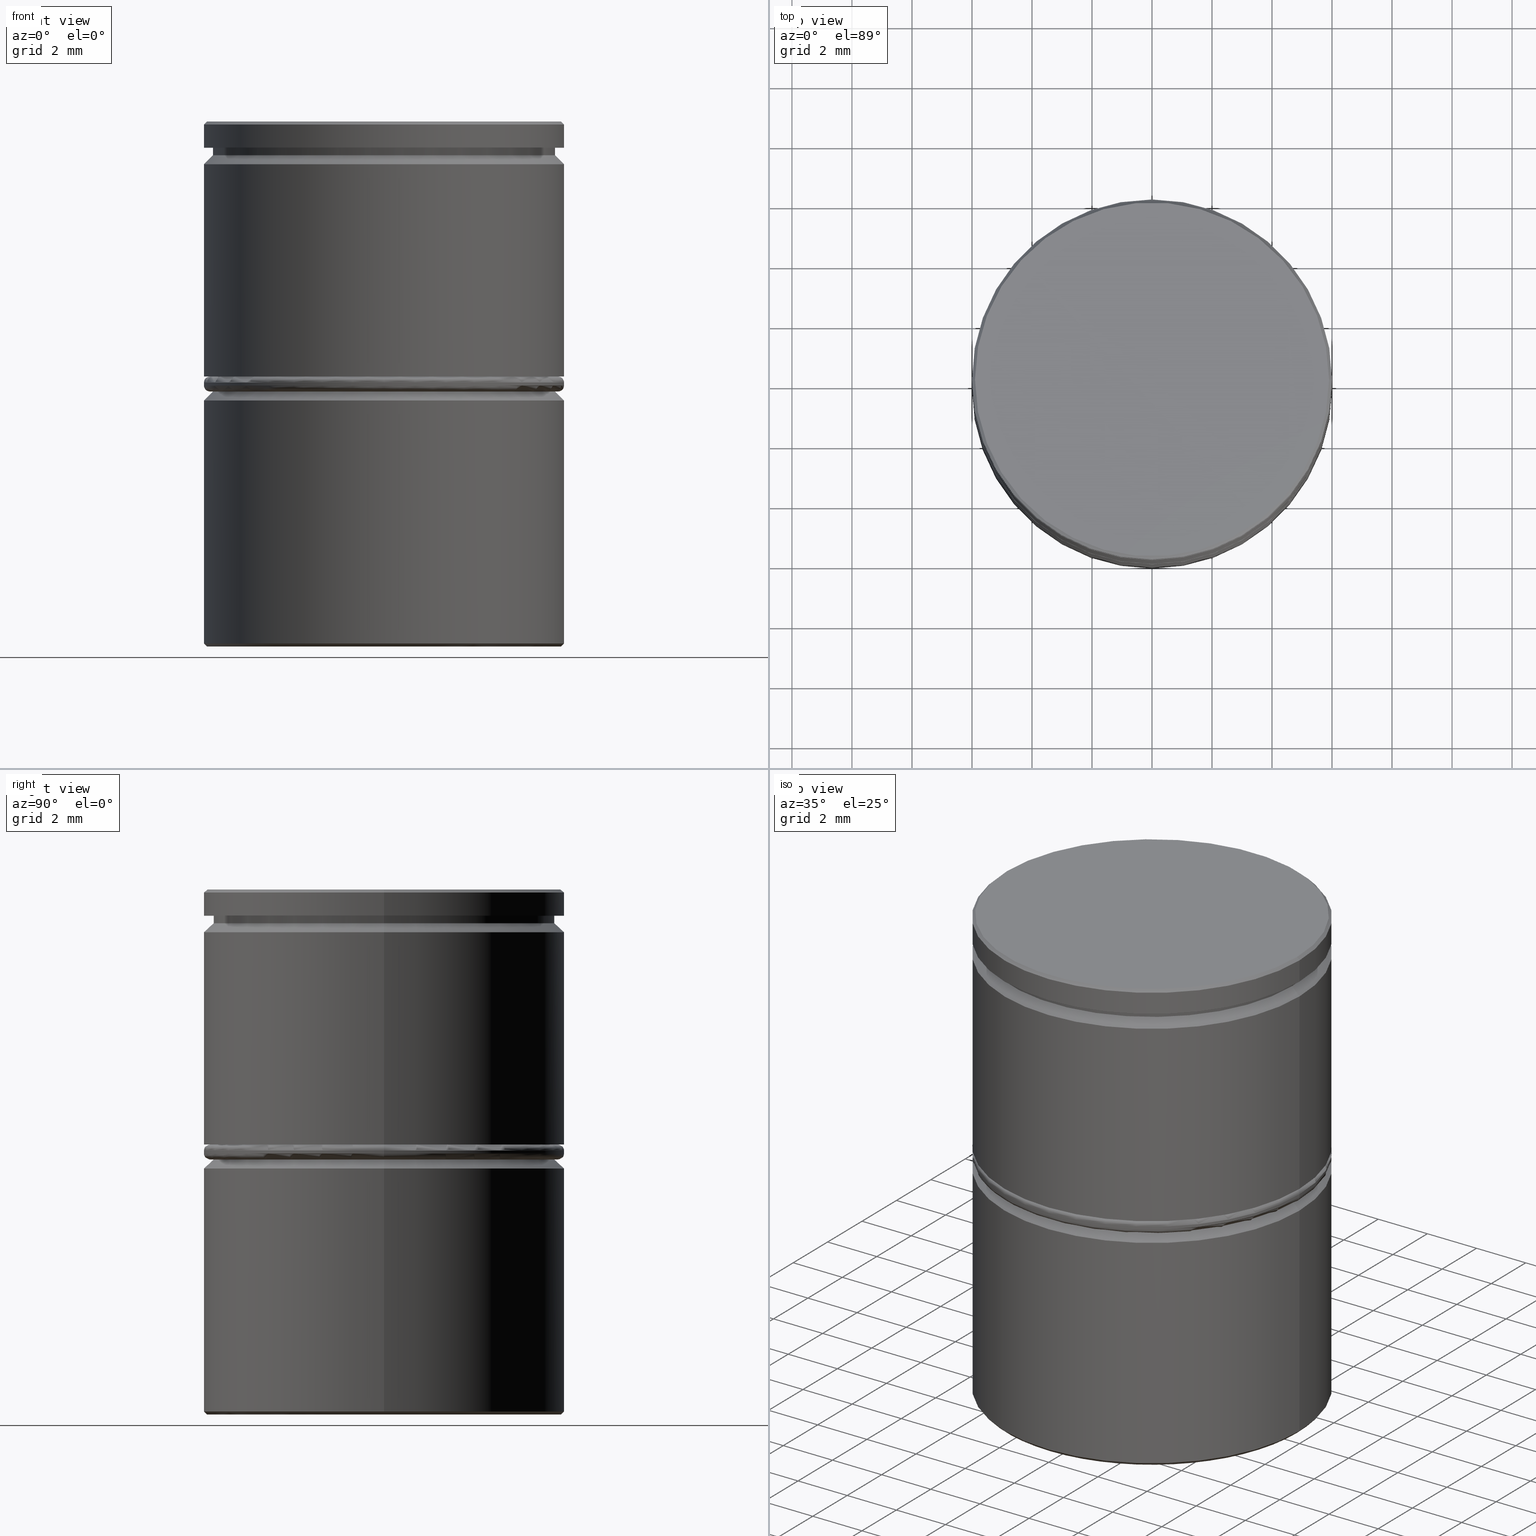
[diagram: canonical four-view strip — front | top / right | iso, engineering-drawing reading convention]
A machine part, canonical four-view strip (front | top / right | iso — engineering-drawing reading convention). The complete STEP part file that produces these views, byte-faithful:
ISO-10303-21;
HEADER;
FILE_DESCRIPTION (( 'STEP AP203' ),
    '1' );
FILE_NAME ('3083.STEP',
    '2024-03-18T12:49:29',
    ( '' ),
    ( '' ),
    'SwSTEP 2.0',
    'SolidWorks 2019',
    '' );
FILE_SCHEMA (( 'CONFIG_CONTROL_DESIGN' ));
ENDSEC;

DATA;
#1 = APPROVAL_STATUS ( 'not_yet_approved' ) ;
#2 = AXIS2_PLACEMENT_3D ( 'NONE', #264, #586, #369 ) ;
#3 = DIRECTION ( 'NONE',  ( 1.000000000000000000, 0.000000000000000000, 0.000000000000000000 ) ) ;
#4 = DIRECTION ( 'NONE',  ( 1.000000000000000000, 0.000000000000000000, 0.000000000000000000 ) ) ;
#5 = ORIENTED_EDGE ( 'NONE', *, *, #606, .T. ) ;
#6 = EDGE_CURVE ( 'NONE', #548, #620, #436, .T. ) ;
#7 = AXIS2_PLACEMENT_3D ( 'NONE', #977, #171, #3 ) ;
#8 = CARTESIAN_POINT ( 'NONE',  ( 0.000000000000000000, 0.000000000000000000, 0.000000000000000000 ) ) ;
#9 = CIRCLE ( 'NONE', #547, 0.2000000000000005107 ) ;
#10 = CIRCLE ( 'NONE', #310, 0.1999999999999996503 ) ;
#11 = CALENDAR_DATE ( 2024, 18, 3 ) ;
#12 = DIRECTION ( 'NONE',  ( -1.000000000000000000, 0.000000000000000000, 0.000000000000000000 ) ) ;
#13 = CARTESIAN_POINT ( 'NONE',  ( 0.000000000000000000, 0.000000000000000000, -8.800000000000002487 ) ) ;
#14 = ORIENTED_EDGE ( 'NONE', *, *, #340, .T. ) ;
#15 = ADVANCED_FACE ( 'NONE', ( #112 ), #996, .F. ) ;
#16 = CARTESIAN_POINT ( 'NONE',  ( -6.000000000000000000, 7.347880794884119736E-16, -1.424999999999999156 ) ) ;
#17 = DIRECTION ( 'NONE',  ( 1.000000000000000000, 0.000000000000000000, 0.000000000000000000 ) ) ;
#18 = CARTESIAN_POINT ( 'NONE',  ( -5.800000000000001599, 0.000000000000000000, -8.699999999999999289 ) ) ;
#19 = ORIENTED_EDGE ( 'NONE', *, *, #631, .F. ) ;
#20 = DIRECTION ( 'NONE',  ( -0.000000000000000000, -0.000000000000000000, -1.000000000000000000 ) ) ;
#21 = FACE_OUTER_BOUND ( 'NONE', #757, .T. ) ;
#22 = LINE ( 'NONE', #726, #694 ) ;
#23 = ORIENTED_EDGE ( 'NONE', *, *, #778, .F. ) ;
#24 = AXIS2_PLACEMENT_3D ( 'NONE', #580, #890, #179 ) ;
#25 = CARTESIAN_POINT ( 'NONE',  ( -5.100000000000000533, 2.944486372867091806, -16.50000000000000000 ) ) ;
#26 = CIRCLE ( 'NONE', #7, 6.000000000000000000 ) ;
#27 = AXIS2_PLACEMENT_3D ( 'NONE', #13, #400, #337 ) ;
#28 = DIRECTION ( 'NONE',  ( -0.000000000000000000, -0.000000000000000000, 1.000000000000000000 ) ) ;
#29 = DIRECTION ( 'NONE',  ( 1.000000000000000000, 0.000000000000000000, 0.000000000000000000 ) ) ;
#30 = CONICAL_SURFACE ( 'NONE', #566, 6.000000000000000000, 0.7853981633974526089 ) ;
#31 = ORIENTED_EDGE ( 'NONE', *, *, #664, .F. ) ;
#32 = ORIENTED_EDGE ( 'NONE', *, *, #770, .F. ) ;
#33 = FACE_OUTER_BOUND ( 'NONE', #239, .T. ) ;
#34 = EDGE_CURVE ( 'NONE', #698, #620, #974, .T. ) ;
#35 = EDGE_CURVE ( 'NONE', #609, #854, #871, .T. ) ;
#36 = DIRECTION ( 'NONE',  ( 0.000000000000000000, 0.000000000000000000, 1.000000000000000000 ) ) ;
#37 = CARTESIAN_POINT ( 'NONE',  ( 0.000000000000000000, 0.000000000000000000, 0.000000000000000000 ) ) ;
#38 = EDGE_LOOP ( 'NONE', ( #448, #633 ) ) ;
#39 = ORIENTED_EDGE ( 'NONE', *, *, #802, .T. ) ;
#40 = CARTESIAN_POINT ( 'NONE',  ( 0.000000000000000000, 6.000000000000000000, -17.50000000000000000 ) ) ;
#41 = DIRECTION ( 'NONE',  ( 0.000000000000000000, 0.000000000000000000, -1.000000000000000000 ) ) ;
#42 = DIRECTION ( 'NONE',  ( -0.000000000000000000, -0.000000000000000000, 1.000000000000000000 ) ) ;
#43 = ORIENTED_EDGE ( 'NONE', *, *, #116, .T. ) ;
#44 =( GEOMETRIC_REPRESENTATION_CONTEXT ( 3 ) GLOBAL_UNCERTAINTY_ASSIGNED_CONTEXT ( ( #119 ) ) GLOBAL_UNIT_ASSIGNED_CONTEXT ( ( #404, #1030, #233 ) ) REPRESENTATION_CONTEXT ( 'NONE', 'WORKASPACE' ) );
#45 = CARTESIAN_POINT ( 'NONE',  ( 0.000000000000000000, 0.000000000000000000, -0.8749999999999998890 ) ) ;
#46 = FACE_OUTER_BOUND ( 'NONE', #184, .T. ) ;
#47 = CIRCLE ( 'NONE', #408, 5.900000000000002132 ) ;
#48 = ORIENTED_EDGE ( 'NONE', *, *, #221, .T. ) ;
#49 = CARTESIAN_POINT ( 'NONE',  ( 0.000000000000000000, 0.000000000000000000, 0.000000000000000000 ) ) ;
#50 = EDGE_CURVE ( 'NONE', #925, #512, #749, .T. ) ;
#51 = EDGE_LOOP ( 'NONE', ( #831, #550, #767, #76 ) ) ;
#52 = LINE ( 'NONE', #764, #157 ) ;
#53 = ORIENTED_EDGE ( 'NONE', *, *, #328, .T. ) ;
#54 = CARTESIAN_POINT ( 'NONE',  ( 0.000000000000000000, 0.000000000000000000, -17.40000000000000213 ) ) ;
#55 = PRODUCT_DEFINITION_FORMATION_WITH_SPECIFIED_SOURCE ( 'LIBOVOLN�', '', #528, .NOT_KNOWN. ) ;
#56 = LINE ( 'NONE', #304, #874 ) ;
#57 = ORIENTED_EDGE ( 'NONE', *, *, #234, .F. ) ;
#58 = AXIS2_PLACEMENT_3D ( 'NONE', #636, #159, #183 ) ;
#59 = LINE ( 'NONE', #618, #86 ) ;
#60 = DIRECTION ( 'NONE',  ( -1.000000000000000000, 0.000000000000000000, 0.000000000000000000 ) ) ;
#61 = ADVANCED_FACE ( 'NONE', ( #125 ), #446, .T. ) ;
#62 = EDGE_LOOP ( 'NONE', ( #5, #102, #212, #501, #999, #945 ) ) ;
#63 = CARTESIAN_POINT ( 'NONE',  ( -5.100000000000000533, -2.944486372867089585, -17.50000000000000000 ) ) ;
#64 = PERSON_AND_ORGANIZATION_ROLE ( 'classification_officer' ) ;
#65 = CARTESIAN_POINT ( 'NONE',  ( -5.100000000000000533, -2.944486372867089585, -16.50000000000000000 ) ) ;
#66 = VECTOR ( 'NONE', #774, 1000.000000000000000 ) ;
#67 = APPROVAL_DATE_TIME ( #466, #207 ) ;
#68 = ORIENTED_EDGE ( 'NONE', *, *, #515, .F. ) ;
#69 = VECTOR ( 'NONE', #983, 1000.000000000000000 ) ;
#70 = AXIS2_PLACEMENT_3D ( 'NONE', #37, #915, #511 ) ;
#71 = DIRECTION ( 'NONE',  ( -0.8660254037844387076, -0.4999999999999998890, 0.000000000000000000 ) ) ;
#72 = TOROIDAL_SURFACE ( 'NONE', #684, 5.800000000000001599, 0.2000000000000000111 ) ;
#73 = CALENDAR_DATE ( 2024, 18, 3 ) ;
#74 = DIRECTION ( 'NONE',  ( -0.000000000000000000, -0.000000000000000000, 1.000000000000000000 ) ) ;
#75 = DIRECTION ( 'NONE',  ( -0.000000000000000000, -0.000000000000000000, 1.000000000000000000 ) ) ;
#76 = ORIENTED_EDGE ( 'NONE', *, *, #298, .F. ) ;
#77 = CARTESIAN_POINT ( 'NONE',  ( -5.900000000000002132, 0.000000000000000000, 0.000000000000000000 ) ) ;
#78 = PERSON ( 'NEUR�EN�', 'NEUR�EN�', 'NEUR�EN�', ('NEUR�EN�'), ('NEUR�EN�'), ('NEUR�EN�') ) ;
#79 = COORDINATED_UNIVERSAL_TIME_OFFSET ( 1, 0, .AHEAD. ) ;
#80 = DIRECTION ( 'NONE',  ( 1.000000000000000000, 0.000000000000000000, 0.000000000000000000 ) ) ;
#81 = CARTESIAN_POINT ( 'NONE',  ( 0.000000000000000000, 0.000000000000000000, -1.125000000000000222 ) ) ;
#82 = ADVANCED_FACE ( 'NONE', ( #104 ), #678, .T. ) ;
#83 = EDGE_LOOP ( 'NONE', ( #928, #235, #701, #808 ) ) ;
#84 = CARTESIAN_POINT ( 'NONE',  ( -5.100000000000000533, 2.944486372867091806, -17.50000000000000000 ) ) ;
#85 = APPLICATION_PROTOCOL_DEFINITION ( 'international standard', 'config_control_design', 1994, #670 ) ;
#86 = VECTOR ( 'NONE', #222, 1000.000000000000000 ) ;
#87 = CC_DESIGN_DATE_AND_TIME_ASSIGNMENT ( #723, #320, ( #285 ) ) ;
#88 = PLANE ( 'NONE',  #460 ) ;
#89 = FACE_OUTER_BOUND ( 'NONE', #513, .T. ) ;
#90 = ORIENTED_EDGE ( 'NONE', *, *, #334, .F. ) ;
#91 = AXIS2_PLACEMENT_3D ( 'NONE', #755, #599, #988 ) ;
#92 = DIRECTION ( 'NONE',  ( -0.000000000000000000, -0.000000000000000000, 1.000000000000000000 ) ) ;
#93 = AXIS2_PLACEMENT_3D ( 'NONE', #423, #432, #837 ) ;
#94 = CIRCLE ( 'NONE', #605, 6.000000000000000000 ) ;
#95 = ADVANCED_FACE ( 'NONE', ( #46 ), #367, .F. ) ;
#96 = DIRECTION ( 'NONE',  ( -0.000000000000000000, -0.000000000000000000, 1.000000000000000000 ) ) ;
#97 = DIRECTION ( 'NONE',  ( 1.000000000000000000, 0.000000000000000000, 0.000000000000000000 ) ) ;
#98 = EDGE_LOOP ( 'NONE', ( #19, #275, #368, #883 ) ) ;
#99 = DIRECTION ( 'NONE',  ( -0.000000000000000000, -0.000000000000000000, 1.000000000000000000 ) ) ;
#100 = FACE_OUTER_BOUND ( 'NONE', #120, .T. ) ;
#101 = DIRECTION ( 'NONE',  ( 1.000000000000000000, 0.000000000000000000, 0.000000000000000000 ) ) ;
#102 = ORIENTED_EDGE ( 'NONE', *, *, #479, .T. ) ;
#103 = DIRECTION ( 'NONE',  ( 1.000000000000000000, 0.000000000000000000, 0.000000000000000000 ) ) ;
#104 = FACE_OUTER_BOUND ( 'NONE', #506, .T. ) ;
#105 = FACE_OUTER_BOUND ( 'NONE', #98, .T. ) ;
#106 = ORIENTED_EDGE ( 'NONE', *, *, #389, .T. ) ;
#107 = ORIENTED_EDGE ( 'NONE', *, *, #557, .T. ) ;
#108 = ADVANCED_FACE ( 'NONE', ( #672 ), #681, .T. ) ;
#109 = EDGE_CURVE ( 'NONE', #1034, #150, #518, .T. ) ;
#110 = DIRECTION ( 'NONE',  ( 0.000000000000000000, 1.000000000000000000, 0.000000000000000000 ) ) ;
#111 = VECTOR ( 'NONE', #893, 1000.000000000000114 ) ;
#112 = FACE_OUTER_BOUND ( 'NONE', #592, .T. ) ;
#113 = DIRECTION ( 'NONE',  ( 0.000000000000000000, 0.000000000000000000, -1.000000000000000000 ) ) ;
#114 = VECTOR ( 'NONE', #169, 1000.000000000000000 ) ;
#115 = ORIENTED_EDGE ( 'NONE', *, *, #846, .F. ) ;
#116 = EDGE_CURVE ( 'NONE', #301, #424, #899, .T. ) ;
#117 = EDGE_LOOP ( 'NONE', ( #191, #1027, #380, #136 ) ) ;
#118 = LINE ( 'NONE', #435, #840 ) ;
#119 = UNCERTAINTY_MEASURE_WITH_UNIT (LENGTH_MEASURE( 1.000000000000000082E-05 ), #404, 'distance_accuracy_value', 'NONE');
#120 = EDGE_LOOP ( 'NONE', ( #456, #31, #668, #309 ) ) ;
#121 = DIRECTION ( 'NONE',  ( -1.000000000000000000, 0.000000000000000000, 0.000000000000000000 ) ) ;
#122 = EDGE_LOOP ( 'NONE', ( #253, #520, #1018, #963 ) ) ;
#123 = EDGE_CURVE ( 'NONE', #419, #595, #474, .T. ) ;
#124 = PLANE ( 'NONE',  #226 ) ;
#125 = FACE_OUTER_BOUND ( 'NONE', #117, .T. ) ;
#126 = LINE ( 'NONE', #357, #776 ) ;
#127 = VERTEX_POINT ( 'NONE', #488 ) ;
#128 = AXIS2_PLACEMENT_3D ( 'NONE', #8, #651, #103 ) ;
#129 = DIRECTION ( 'NONE',  ( 1.000000000000000000, 0.000000000000000000, 0.000000000000000000 ) ) ;
#130 = CLOSED_SHELL ( 'NONE', ( #430, #553, #814, #439, #82, #95, #61, #108 ) ) ;
#131 = CONICAL_SURFACE ( 'NONE', #564, 5.700000000000008171, 0.7853981633974497223 ) ;
#132 = ORIENTED_EDGE ( 'NONE', *, *, #802, .F. ) ;
#133 = AXIS2_PLACEMENT_3D ( 'NONE', #958, #420, #968 ) ;
#134 = LINE ( 'NONE', #1000, #362 ) ;
#135 = ADVANCED_FACE ( 'NONE', ( #417 ), #88, .F. ) ;
#136 = ORIENTED_EDGE ( 'NONE', *, *, #645, .F. ) ;
#137 = CARTESIAN_POINT ( 'NONE',  ( -5.100000000000000533, 2.944486372867091806, -16.50000000000000000 ) ) ;
#138 = DIRECTION ( 'NONE',  ( 0.000000000000000000, 0.000000000000000000, 1.000000000000000000 ) ) ;
#139 = ORIENTED_EDGE ( 'NONE', *, *, #1001, .F. ) ;
#140 = CARTESIAN_POINT ( 'NONE',  ( 5.099999999999999645, 2.944486372867090029, -16.50000000000000000 ) ) ;
#141 = EDGE_CURVE ( 'NONE', #869, #467, #26, .T. ) ;
#142 = CONICAL_SURFACE ( 'NONE', #1007, 5.700000000000008171, 0.7853981633974497223 ) ;
#143 = CARTESIAN_POINT ( 'NONE',  ( 5.800000000000001599, 7.225416114969385180E-16, -8.500000000000000000 ) ) ;
#144 = ORIENTED_EDGE ( 'NONE', *, *, #952, .F. ) ;
#145 = AXIS2_PLACEMENT_3D ( 'NONE', #868, #322, #4 ) ;
#146 = CONICAL_SURFACE ( 'NONE', #943, 5.900000000000002132, 0.7853981633974439491 ) ;
#147 = DIRECTION ( 'NONE',  ( 0.000000000000000000, 0.000000000000000000, -1.000000000000000000 ) ) ;
#148 = DIRECTION ( 'NONE',  ( -0.000000000000000000, -0.000000000000000000, 1.000000000000000000 ) ) ;
#149 = COORDINATED_UNIVERSAL_TIME_OFFSET ( 1, 0, .AHEAD. ) ;
#150 = VERTEX_POINT ( 'NONE', #329 ) ;
#151 = EDGE_CURVE ( 'NONE', #728, #276, #426, .T. ) ;
#152 = CARTESIAN_POINT ( 'NONE',  ( 6.000000000000000000, 0.000000000000000000, -9.299999999999991829 ) ) ;
#153 = APPROVAL_ROLE ( '' ) ;
#154 = EDGE_LOOP ( 'NONE', ( #444, #650, #338, #197 ) ) ;
#155 = EDGE_CURVE ( 'NONE', #1034, #824, #969, .T. ) ;
#156 = CARTESIAN_POINT ( 'NONE',  ( 0.000000000000000000, 0.000000000000000000, 0.000000000000000000 ) ) ;
#157 = VECTOR ( 'NONE', #294, 1000.000000000000000 ) ;
#158 = DIRECTION ( 'NONE',  ( -0.000000000000000000, -0.000000000000000000, 1.000000000000000000 ) ) ;
#159 = DIRECTION ( 'NONE',  ( -0.000000000000000000, -0.000000000000000000, 1.000000000000000000 ) ) ;
#160 = ORIENTED_EDGE ( 'NONE', *, *, #953, .T. ) ;
#161 = AXIS2_PLACEMENT_3D ( 'NONE', #166, #96, #875 ) ;
#162 = FACE_OUTER_BOUND ( 'NONE', #210, .T. ) ;
#163 = AXIS2_PLACEMENT_3D ( 'NONE', #65, #392, #138 ) ;
#164 = EDGE_CURVE ( 'NONE', #467, #869, #724, .T. ) ;
#165 = APPROVAL_DATE_TIME ( #335, #937 ) ;
#166 = CARTESIAN_POINT ( 'NONE',  ( 0.000000000000000000, 0.000000000000000000, 0.000000000000000000 ) ) ;
#167 = CARTESIAN_POINT ( 'NONE',  ( 5.800000000000001599, 0.000000000000000000, -9.000000000000001776 ) ) ;
#168 = ORIENTED_EDGE ( 'NONE', *, *, #905, .F. ) ;
#169 = DIRECTION ( 'NONE',  ( -0.000000000000000000, -0.000000000000000000, 1.000000000000000000 ) ) ;
#170 = APPROVAL ( #862, 'NEUR�EN�' ) ;
#171 = DIRECTION ( 'NONE',  ( 0.000000000000000000, 0.000000000000000000, -1.000000000000000000 ) ) ;
#172 = LINE ( 'NONE', #800, #477 ) ;
#173 = ORIENTED_EDGE ( 'NONE', *, *, #480, .T. ) ;
#174 = DIRECTION ( 'NONE',  ( 0.000000000000000000, 0.000000000000000000, -1.000000000000000000 ) ) ;
#175 = CC_DESIGN_SECURITY_CLASSIFICATION ( #509, ( #55 ) ) ;
#176 = CARTESIAN_POINT ( 'NONE',  ( 5.099999999999999645, 2.944486372867090029, -16.50000000000000000 ) ) ;
#177 = CARTESIAN_POINT ( 'NONE',  ( 6.000000000000000888, 0.000000000000000000, -8.699999999999999289 ) ) ;
#178 = VERTEX_POINT ( 'NONE', #648 ) ;
#179 = DIRECTION ( 'NONE',  ( -1.000000000000000000, 0.000000000000000000, -0.000000000000000000 ) ) ;
#180 = VECTOR ( 'NONE', #782, 1000.000000000000000 ) ;
#181 = VECTOR ( 'NONE', #402, 1000.000000000000000 ) ;
#182 = LINE ( 'NONE', #243, #998 ) ;
#183 = DIRECTION ( 'NONE',  ( 1.000000000000000000, 0.000000000000000000, 0.000000000000000000 ) ) ;
#184 = EDGE_LOOP ( 'NONE', ( #14, #860 ) ) ;
#185 = DIRECTION ( 'NONE',  ( -0.000000000000000000, -0.000000000000000000, 1.000000000000000000 ) ) ;
#186 = CARTESIAN_POINT ( 'NONE',  ( 5.700000000000000178, 0.000000000000000000, 0.000000000000000000 ) ) ;
#187 = ADVANCED_FACE ( 'NONE', ( #100 ), #131, .T. ) ;
#188 = EDGE_CURVE ( 'NONE', #623, #675, #182, .T. ) ;
#189 = DIRECTION ( 'NONE',  ( 1.000000000000000000, 0.000000000000000000, 0.000000000000000000 ) ) ;
#190 = ORIENTED_EDGE ( 'NONE', *, *, #1015, .F. ) ;
#191 = ORIENTED_EDGE ( 'NONE', *, *, #797, .F. ) ;
#192 = CARTESIAN_POINT ( 'NONE',  ( 5.099999999999999645, -2.944486372867090918, -16.50000000000000000 ) ) ;
#193 = ADVANCED_FACE ( 'NONE', ( #965, #571 ), #794, .T. ) ;
#194 = CARTESIAN_POINT ( 'NONE',  ( 5.099999999999999645, 2.944486372867090029, -16.50000000000000000 ) ) ;
#195 = DIRECTION ( 'NONE',  ( 1.000000000000000000, 0.000000000000000000, 0.000000000000000000 ) ) ;
#196 = AXIS2_PLACEMENT_3D ( 'NONE', #813, #99, #415 ) ;
#197 = ORIENTED_EDGE ( 'NONE', *, *, #327, .F. ) ;
#198 = ORIENTED_EDGE ( 'NONE', *, *, #372, .F. ) ;
#199 = CARTESIAN_POINT ( 'NONE',  ( -5.700000000000000178, 6.980486755139913108E-16, -1.125000000000000222 ) ) ;
#200 = EDGE_CURVE ( 'NONE', #877, #205, #47, .T. ) ;
#201 = AXIS2_PLACEMENT_3D ( 'NONE', #600, #907, #195 ) ;
#202 = DIRECTION ( 'NONE',  ( -0.000000000000000000, -0.000000000000000000, 1.000000000000000000 ) ) ;
#203 = CARTESIAN_POINT ( 'NONE',  ( 0.000000000000000000, 0.000000000000000000, -8.500000000000000000 ) ) ;
#204 = VERTEX_POINT ( 'NONE', #494 ) ;
#205 = VERTEX_POINT ( 'NONE', #475 ) ;
#206 = DIRECTION ( 'NONE',  ( -0.000000000000000000, -0.000000000000000000, 1.000000000000000000 ) ) ;
#207 = APPROVAL ( #1, 'NEUR�EN�' ) ;
#208 = DIRECTION ( 'NONE',  ( -1.000000000000000000, 0.000000000000000000, 0.000000000000000000 ) ) ;
#209 = PLANE ( 'NONE',  #70 ) ;
#210 = EDGE_LOOP ( 'NONE', ( #115, #283, #957, #374 ) ) ;
#211 = CYLINDRICAL_SURFACE ( 'NONE', #613, 6.000000000000000000 ) ;
#212 = ORIENTED_EDGE ( 'NONE', *, *, #155, .T. ) ;
#213 = CIRCLE ( 'NONE', #196, 5.700000000000000178 ) ;
#214 = EDGE_CURVE ( 'NONE', #824, #637, #341, .T. ) ;
#215 = CYLINDRICAL_SURFACE ( 'NONE', #325, 6.000000000000000888 ) ;
#216 = VECTOR ( 'NONE', #244, 1000.000000000000000 ) ;
#217 = ORIENTED_EDGE ( 'NONE', *, *, #490, .T. ) ;
#218 = AXIS2_PLACEMENT_3D ( 'NONE', #482, #185, #1035 ) ;
#219 = DIRECTION ( 'NONE',  ( -0.7071067811865485719, 0.000000000000000000, -0.7071067811865465735 ) ) ;
#220 = ORIENTED_EDGE ( 'NONE', *, *, #234, .T. ) ;
#221 = EDGE_CURVE ( 'NONE', #178, #903, #577, .T. ) ;
#222 = DIRECTION ( 'NONE',  ( -0.7071067811865434649, 0.000000000000000000, -0.7071067811865516806 ) ) ;
#223 = DIRECTION ( 'NONE',  ( 1.000000000000000000, 0.000000000000000000, 0.000000000000000000 ) ) ;
#224 = ORIENTED_EDGE ( 'NONE', *, *, #664, .T. ) ;
#225 = DIRECTION ( 'NONE',  ( -1.000000000000000000, 0.000000000000000000, 0.000000000000000000 ) ) ;
#226 = AXIS2_PLACEMENT_3D ( 'NONE', #40, #445, #532 ) ;
#227 = CYLINDRICAL_SURFACE ( 'NONE', #979, 5.700000000000000178 ) ;
#228 = EDGE_CURVE ( 'NONE', #822, #620, #735, .T. ) ;
#229 = ORIENTED_EDGE ( 'NONE', *, *, #905, .T. ) ;
#230 = AXIS2_PLACEMENT_3D ( 'NONE', #81, #489, #418 ) ;
#231 = VECTOR ( 'NONE', #71, 1000.000000000000114 ) ;
#232 = DIRECTION ( 'NONE',  ( -1.000000000000000000, 0.000000000000000000, 0.000000000000000000 ) ) ;
#233 =( NAMED_UNIT ( * ) SI_UNIT ( $, .STERADIAN. ) SOLID_ANGLE_UNIT ( ) );
#234 = EDGE_CURVE ( 'NONE', #205, #877, #919, .T. ) ;
#235 = ORIENTED_EDGE ( 'NONE', *, *, #50, .T. ) ;
#236 = FACE_OUTER_BOUND ( 'NONE', #343, .T. ) ;
#237 = COORDINATED_UNIVERSAL_TIME_OFFSET ( 1, 0, .AHEAD. ) ;
#238 = DIRECTION ( 'NONE',  ( -0.000000000000000000, -0.000000000000000000, 1.000000000000000000 ) ) ;
#239 = EDGE_LOOP ( 'NONE', ( #217, #654 ) ) ;
#240 = CARTESIAN_POINT ( 'NONE',  ( 0.000000000000000000, 0.000000000000000000, -0.8749999999999998890 ) ) ;
#241 = LOCAL_TIME ( 13, 49, 29.00000000000000000, #79 ) ;
#242 = CIRCLE ( 'NONE', #2, 0.1999999999999996503 ) ;
#243 = CARTESIAN_POINT ( 'NONE',  ( -6.000000000000000000, 7.347880794884119736E-16, 0.000000000000000000 ) ) ;
#244 = DIRECTION ( 'NONE',  ( 0.7071067811865505703, 0.000000000000000000, 0.7071067811865444641 ) ) ;
#245 = EDGE_LOOP ( 'NONE', ( #358, #23, #556, #462 ) ) ;
#246 = AXIS2_PLACEMENT_3D ( 'NONE', #431, #799, #399 ) ;
#247 = CC_DESIGN_PERSON_AND_ORGANIZATION_ASSIGNMENT ( #712, #250, ( #285 ) ) ;
#248 = VECTOR ( 'NONE', #642, 1000.000000000000114 ) ;
#249 = CARTESIAN_POINT ( 'NONE',  ( 0.000000000000000000, 0.000000000000000000, -1.125000000000000222 ) ) ;
#250 = PERSON_AND_ORGANIZATION_ROLE ( 'creator' ) ;
#251 = DIRECTION ( 'NONE',  ( -1.000000000000000000, 0.000000000000000000, -0.000000000000000000 ) ) ;
#252 = DIRECTION ( 'NONE',  ( 0.000000000000000000, 0.000000000000000000, -1.000000000000000000 ) ) ;
#253 = ORIENTED_EDGE ( 'NONE', *, *, #514, .F. ) ;
#254 = DIRECTION ( 'NONE',  ( 1.000000000000000000, 0.000000000000000000, 0.000000000000000000 ) ) ;
#255 = PERSON_AND_ORGANIZATION ( #78, #939 ) ;
#256 = EDGE_CURVE ( 'NONE', #620, #698, #828, .T. ) ;
#257 = CARTESIAN_POINT ( 'NONE',  ( 5.099999999999999645, -2.944486372867090918, -16.50000000000000000 ) ) ;
#258 = LINE ( 'NONE', #732, #746 ) ;
#259 = EDGE_LOOP ( 'NONE', ( #863, #39, #274, #263 ) ) ;
#260 = FACE_OUTER_BOUND ( 'NONE', #62, .T. ) ;
#261 = CARTESIAN_POINT ( 'NONE',  ( 0.000000000000000000, 5.888972745734180059, -16.50000000000000000 ) ) ;
#262 = CARTESIAN_POINT ( 'NONE',  ( 0.000000000000000000, 0.000000000000000000, 0.000000000000000000 ) ) ;
#263 = ORIENTED_EDGE ( 'NONE', *, *, #6, .F. ) ;
#264 = CARTESIAN_POINT ( 'NONE',  ( 5.800000000000001599, 7.102951435054649637E-16, -8.699999999999999289 ) ) ;
#265 = CIRCLE ( 'NONE', #697, 6.000000000000000888 ) ;
#266 = DIRECTION ( 'NONE',  ( 0.000000000000000000, 0.000000000000000000, -1.000000000000000000 ) ) ;
#267 = FACE_OUTER_BOUND ( 'NONE', #596, .T. ) ;
#268 = VERTEX_POINT ( 'NONE', #810 ) ;
#269 = ORIENTED_EDGE ( 'NONE', *, *, #221, .F. ) ;
#270 = ADVANCED_FACE ( 'NONE', ( #21 ), #347, .T. ) ;
#271 = CARTESIAN_POINT ( 'NONE',  ( 0.000000000000000000, 0.000000000000000000, -17.40000000000000213 ) ) ;
#272 = DIRECTION ( 'NONE',  ( 1.000000000000000000, 0.000000000000000000, -0.000000000000000000 ) ) ;
#273 = DIRECTION ( 'NONE',  ( -1.000000000000000000, 0.000000000000000000, 0.000000000000000000 ) ) ;
#274 = ORIENTED_EDGE ( 'NONE', *, *, #34, .T. ) ;
#275 = ORIENTED_EDGE ( 'NONE', *, *, #761, .T. ) ;
#276 = VERTEX_POINT ( 'NONE', #635 ) ;
#277 = CARTESIAN_POINT ( 'NONE',  ( 6.000000000000000000, 0.000000000000000000, -1.424999999999999156 ) ) ;
#278 = ADVANCED_FACE ( 'NONE', ( #483 ), #713, .T. ) ;
#279 = CARTESIAN_POINT ( 'NONE',  ( -5.700000000000000178, 6.980486755139913108E-16, 0.000000000000000000 ) ) ;
#280 = CARTESIAN_POINT ( 'NONE',  ( 6.000000000000000888, 0.000000000000000000, -8.800000000000002487 ) ) ;
#281 = AXIS2_PLACEMENT_3D ( 'NONE', #843, #206, #839 ) ;
#282 = VERTEX_POINT ( 'NONE', #649 ) ;
#283 = ORIENTED_EDGE ( 'NONE', *, *, #200, .F. ) ;
#284 = DIRECTION ( 'NONE',  ( -0.000000000000000000, -0.000000000000000000, 1.000000000000000000 ) ) ;
#285 = PRODUCT_DEFINITION ( 'NEZN�M�', '', #55, #441 ) ;
#286 = CIRCLE ( 'NONE', #27, 6.000000000000000888 ) ;
#287 = CONICAL_SURFACE ( 'NONE', #895, 5.900000000000002132, 0.7853981633974439491 ) ;
#288 = DIRECTION ( 'NONE',  ( -0.000000000000000000, -0.000000000000000000, 1.000000000000000000 ) ) ;
#289 = DIRECTION ( 'NONE',  ( 1.000000000000000000, 0.000000000000000000, 0.000000000000000000 ) ) ;
#290 = ORIENTED_EDGE ( 'NONE', *, *, #35, .T. ) ;
#291 = ADVANCED_FACE ( 'NONE', ( #563, #484 ), #795, .T. ) ;
#292 = CARTESIAN_POINT ( 'NONE',  ( -5.100000000000000533, -2.944486372867089585, -17.50000000000000000 ) ) ;
#293 = ORIENTED_EDGE ( 'NONE', *, *, #372, .T. ) ;
#294 = DIRECTION ( 'NONE',  ( 0.7071067811865444641, 8.659560562354897113E-17, -0.7071067811865505703 ) ) ;
#295 = EDGE_LOOP ( 'NONE', ( #132, #349, #354, #538 ) ) ;
#296 = VECTOR ( 'NONE', #20, 1000.000000000000000 ) ;
#297 = LINE ( 'NONE', #851, #784 ) ;
#298 = EDGE_CURVE ( 'NONE', #854, #268, #9, .T. ) ;
#299 = ADVANCED_FACE ( 'NONE', ( #89 ), #555, .T. ) ;
#300 = CIRCLE ( 'NONE', #379, 6.000000000000000000 ) ;
#301 = VERTEX_POINT ( 'NONE', #495 ) ;
#302 = CIRCLE ( 'NONE', #410, 5.800000000000001599 ) ;
#303 = DIRECTION ( 'NONE',  ( -1.000000000000000000, 0.000000000000000000, 0.000000000000000000 ) ) ;
#304 = CARTESIAN_POINT ( 'NONE',  ( -8.646952822150503169E-16, -5.888972745734181835, -17.50000000000000000 ) ) ;
#305 = ORIENTED_EDGE ( 'NONE', *, *, #739, .T. ) ;
#306 = CARTESIAN_POINT ( 'NONE',  ( 5.700000000000000178, 0.000000000000000000, 0.000000000000000000 ) ) ;
#307 = DIRECTION ( 'NONE',  ( -0.000000000000000000, -0.000000000000000000, 1.000000000000000000 ) ) ;
#308 = EDGE_CURVE ( 'NONE', #822, #1002, #917, .T. ) ;
#309 = ORIENTED_EDGE ( 'NONE', *, *, #256, .F. ) ;
#310 = AXIS2_PLACEMENT_3D ( 'NONE', #646, #502, #574 ) ;
#311 = CARTESIAN_POINT ( 'NONE',  ( 6.000000000000000000, 0.000000000000000000, -0.8749999999999998890 ) ) ;
#312 = CALENDAR_DATE ( 2024, 18, 3 ) ;
#313 = AXIS2_PLACEMENT_3D ( 'NONE', #510, #41, #921 ) ;
#314 = AXIS2_PLACEMENT_3D ( 'NONE', #588, #42, #679 ) ;
#315 = ORIENTED_EDGE ( 'NONE', *, *, #155, .F. ) ;
#316 = CYLINDRICAL_SURFACE ( 'NONE', #858, 6.000000000000000000 ) ;
#317 = EDGE_CURVE ( 'NONE', #301, #903, #258, .T. ) ;
#318 = ORIENTED_EDGE ( 'NONE', *, *, #141, .F. ) ;
#319 = CARTESIAN_POINT ( 'NONE',  ( 0.000000000000000000, 0.000000000000000000, -9.000000000000001776 ) ) ;
#320 = DATE_TIME_ROLE ( 'creation_date' ) ;
#321 = DIRECTION ( 'NONE',  ( 0.7071067811865485719, 8.659560562354946417E-17, -0.7071067811865465735 ) ) ;
#322 = DIRECTION ( 'NONE',  ( -0.000000000000000000, -0.000000000000000000, 1.000000000000000000 ) ) ;
#323 = ORIENTED_EDGE ( 'NONE', *, *, #188, .F. ) ;
#324 = DIRECTION ( 'NONE',  ( 0.8660254037844389297, 0.4999999999999995559, 0.000000000000000000 ) ) ;
#325 = AXIS2_PLACEMENT_3D ( 'NONE', #1003, #522, #129 ) ;
#326 = PERSON_AND_ORGANIZATION ( #78, #939 ) ;
#327 = EDGE_CURVE ( 'NONE', #276, #548, #342, .T. ) ;
#328 = EDGE_CURVE ( 'NONE', #1002, #419, #876, .T. ) ;
#329 = CARTESIAN_POINT ( 'NONE',  ( 5.099999999999999645, 2.944486372867090029, -17.50000000000000000 ) ) ;
#330 = CARTESIAN_POINT ( 'NONE',  ( -5.700000000000000178, 6.980486755139913108E-16, 0.000000000000000000 ) ) ;
#331 = VERTEX_POINT ( 'NONE', #167 ) ;
#332 = CIRCLE ( 'NONE', #660, 5.800000000000001599 ) ;
#333 = CARTESIAN_POINT ( 'NONE',  ( 0.000000000000000000, 5.888972745734180059, -16.50000000000000000 ) ) ;
#334 = EDGE_CURVE ( 'NONE', #204, #150, #572, .T. ) ;
#335 = DATE_AND_TIME ( #11, #346 ) ;
#336 = CARTESIAN_POINT ( 'NONE',  ( 0.000000000000000000, 6.000000000000000000, -0.8749999999999998890 ) ) ;
#337 = DIRECTION ( 'NONE',  ( 1.000000000000000000, 0.000000000000000000, 0.000000000000000000 ) ) ;
#338 = ORIENTED_EDGE ( 'NONE', *, *, #703, .F. ) ;
#339 = DIRECTION ( 'NONE',  ( -1.000000000000000000, 0.000000000000000000, 0.000000000000000000 ) ) ;
#340 = EDGE_CURVE ( 'NONE', #331, #391, #365, .T. ) ;
#341 = LINE ( 'NONE', #257, #111 ) ;
#342 = LINE ( 'NONE', #500, #216 ) ;
#343 = EDGE_LOOP ( 'NONE', ( #425, #414, #980, #383 ) ) ;
#344 = FACE_OUTER_BOUND ( 'NONE', #122, .T. ) ;
#345 = ADVANCED_FACE ( 'NONE', ( #476 ), #976, .T. ) ;
#346 = LOCAL_TIME ( 13, 49, 29.00000000000000000, #149 ) ;
#347 = CYLINDRICAL_SURFACE ( 'NONE', #428, 6.000000000000000000 ) ;
#348 = CARTESIAN_POINT ( 'NONE',  ( 6.000000000000000000, 0.000000000000000000, -0.09999999999999852063 ) ) ;
#349 = ORIENTED_EDGE ( 'NONE', *, *, #1032, .T. ) ;
#350 = DIRECTION ( 'NONE',  ( 1.000000000000000000, 0.000000000000000000, 0.000000000000000000 ) ) ;
#351 = CIRCLE ( 'NONE', #535, 5.700000000000000178 ) ;
#352 = DIRECTION ( 'NONE',  ( -1.000000000000000000, 0.000000000000000000, 0.000000000000000000 ) ) ;
#353 = CARTESIAN_POINT ( 'NONE',  ( -5.700000000000000178, 6.980486755139913108E-16, -8.500000000000000000 ) ) ;
#354 = ORIENTED_EDGE ( 'NONE', *, *, #6, .T. ) ;
#355 = ORIENTED_EDGE ( 'NONE', *, *, #639, .T. ) ;
#356 = DIRECTION ( 'NONE',  ( -0.000000000000000000, -0.000000000000000000, 1.000000000000000000 ) ) ;
#357 = CARTESIAN_POINT ( 'NONE',  ( 5.099999999999999645, 2.944486372867090029, -17.50000000000000000 ) ) ;
#358 = ORIENTED_EDGE ( 'NONE', *, *, #849, .T. ) ;
#359 = ORIENTED_EDGE ( 'NONE', *, *, #340, .F. ) ;
#360 = CARTESIAN_POINT ( 'NONE',  ( -5.800000000000001599, 0.000000000000000000, -8.500000000000000000 ) ) ;
#361 = CARTESIAN_POINT ( 'NONE',  ( 0.000000000000000000, 0.000000000000000000, -9.000000000000001776 ) ) ;
#362 = VECTOR ( 'NONE', #748, 1000.000000000000000 ) ;
#363 = ORIENTED_EDGE ( 'NONE', *, *, #317, .T. ) ;
#364 = CARTESIAN_POINT ( 'NONE',  ( 0.000000000000000000, 5.888972745734180059, -16.50000000000000000 ) ) ;
#365 = CIRCLE ( 'NONE', #892, 5.800000000000001599 ) ;
#366 = AXIS2_PLACEMENT_3D ( 'NONE', #271, #809, #870 ) ;
#367 = PLANE ( 'NONE',  #533 ) ;
#368 = ORIENTED_EDGE ( 'NONE', *, *, #389, .F. ) ;
#369 = DIRECTION ( 'NONE',  ( -1.000000000000000000, -1.224646799147353454E-16, 0.000000000000000000 ) ) ;
#370 = ORIENTED_EDGE ( 'NONE', *, *, #451, .T. ) ;
#371 = PLANE ( 'NONE',  #443 ) ;
#372 = EDGE_CURVE ( 'NONE', #637, #452, #736, .T. ) ;
#373 = EDGE_CURVE ( 'NONE', #525, #985, #172, .T. ) ;
#374 = ORIENTED_EDGE ( 'NONE', *, *, #164, .F. ) ;
#375 = VECTOR ( 'NONE', #768, 1000.000000000000000 ) ;
#376 = DIRECTION ( 'NONE',  ( -0.000000000000000000, -0.000000000000000000, 1.000000000000000000 ) ) ;
#377 = CYLINDRICAL_SURFACE ( 'NONE', #931, 6.000000000000000000 ) ;
#378 = AXIS2_PLACEMENT_3D ( 'NONE', #504, #913, #352 ) ;
#379 = AXIS2_PLACEMENT_3D ( 'NONE', #594, #113, #189 ) ;
#380 = ORIENTED_EDGE ( 'NONE', *, *, #298, .T. ) ;
#381 = DIRECTION ( 'NONE',  ( -0.000000000000000000, -0.000000000000000000, 1.000000000000000000 ) ) ;
#382 = LINE ( 'NONE', #546, #231 ) ;
#383 = ORIENTED_EDGE ( 'NONE', *, *, #416, .F. ) ;
#384 = PRODUCT_RELATED_PRODUCT_CATEGORY ( 'detail', '', ( #528 ) ) ;
#385 = FACE_OUTER_BOUND ( 'NONE', #796, .T. ) ;
#386 = EDGE_CURVE ( 'NONE', #496, #401, #22, .T. ) ;
#387 = AXIS2_PLACEMENT_3D ( 'NONE', #612, #610, #829 ) ;
#388 = FACE_OUTER_BOUND ( 'NONE', #715, .T. ) ;
#389 = EDGE_CURVE ( 'NONE', #496, #752, #286, .T. ) ;
#390 = AXIS2_PLACEMENT_3D ( 'NONE', #756, #815, #289 ) ;
#391 = VERTEX_POINT ( 'NONE', #966 ) ;
#392 = DIRECTION ( 'NONE',  ( -1.000000000000000000, 0.000000000000000000, 0.000000000000000000 ) ) ;
#393 = COORDINATED_UNIVERSAL_TIME_OFFSET ( 1, 0, .AHEAD. ) ;
#394 = DIRECTION ( 'NONE',  ( 1.000000000000000000, 0.000000000000000000, 0.000000000000000000 ) ) ;
#395 = DIRECTION ( 'NONE',  ( 1.000000000000000000, 0.000000000000000000, 0.000000000000000000 ) ) ;
#396 = ORIENTED_EDGE ( 'NONE', *, *, #847, .T. ) ;
#397 = EDGE_CURVE ( 'NONE', #595, #419, #842, .T. ) ;
#398 = CARTESIAN_POINT ( 'NONE',  ( 0.000000000000000000, 0.000000000000000000, -9.000000000000001776 ) ) ;
#399 = DIRECTION ( 'NONE',  ( 1.000000000000000000, 0.000000000000000000, 0.000000000000000000 ) ) ;
#400 = DIRECTION ( 'NONE',  ( 0.000000000000000000, 0.000000000000000000, 1.000000000000000000 ) ) ;
#401 = VERTEX_POINT ( 'NONE', #177 ) ;
#402 = DIRECTION ( 'NONE',  ( -0.7071067811865444641, 0.000000000000000000, -0.7071067811865505703 ) ) ;
#403 = CIRCLE ( 'NONE', #994, 0.2000000000000005107 ) ;
#404 =( LENGTH_UNIT ( ) NAMED_UNIT ( * ) SI_UNIT ( .MILLI., .METRE. ) );
#405 = CARTESIAN_POINT ( 'NONE',  ( 0.000000000000000000, 0.000000000000000000, -17.50000000000000000 ) ) ;
#406 = CARTESIAN_POINT ( 'NONE',  ( 0.000000000000000000, 6.000000000000000000, -8.500000000000000000 ) ) ;
#407 = ORIENTED_EDGE ( 'NONE', *, *, #386, .F. ) ;
#408 = AXIS2_PLACEMENT_3D ( 'NONE', #562, #158, #17 ) ;
#409 = ADVANCED_FACE ( 'NONE', ( #886 ), #1033, .T. ) ;
#410 = AXIS2_PLACEMENT_3D ( 'NONE', #319, #634, #950 ) ;
#411 = CARTESIAN_POINT ( 'NONE',  ( -6.000000000000000000, 7.347880794884119736E-16, 0.000000000000000000 ) ) ;
#412 = CARTESIAN_POINT ( 'NONE',  ( 0.000000000000000000, 0.000000000000000000, -9.299999999999991829 ) ) ;
#413 = DIRECTION ( 'NONE',  ( -0.000000000000000000, -1.000000000000000000, -0.000000000000000000 ) ) ;
#414 = ORIENTED_EDGE ( 'NONE', *, *, #593, .F. ) ;
#415 = DIRECTION ( 'NONE',  ( 1.000000000000000000, 0.000000000000000000, 0.000000000000000000 ) ) ;
#416 = EDGE_CURVE ( 'NONE', #903, #675, #300, .T. ) ;
#417 = FACE_OUTER_BOUND ( 'NONE', #777, .T. ) ;
#418 = DIRECTION ( 'NONE',  ( -1.000000000000000000, 0.000000000000000000, 0.000000000000000000 ) ) ;
#419 = VERTEX_POINT ( 'NONE', #353 ) ;
#420 = DIRECTION ( 'NONE',  ( 0.000000000000000000, 0.000000000000000000, -1.000000000000000000 ) ) ;
#421 = VECTOR ( 'NONE', #683, 1000.000000000000000 ) ;
#422 = DIRECTION ( 'NONE',  ( 0.000000000000000000, 0.000000000000000000, 1.000000000000000000 ) ) ;
#423 = CARTESIAN_POINT ( 'NONE',  ( 0.000000000000000000, 0.000000000000000000, -8.500000000000000000 ) ) ;
#424 = VERTEX_POINT ( 'NONE', #997 ) ;
#425 = ORIENTED_EDGE ( 'NONE', *, *, #317, .F. ) ;
#426 = CIRCLE ( 'NONE', #1009, 5.899999999999999467 ) ;
#427 = LINE ( 'NONE', #292, #889 ) ;
#428 = AXIS2_PLACEMENT_3D ( 'NONE', #657, #74, #394 ) ;
#429 = CONICAL_SURFACE ( 'NONE', #366, 6.000000000000000000, 0.7853981633974526089 ) ;
#430 = ADVANCED_FACE ( 'NONE', ( #105 ), #643, .T. ) ;
#431 = CARTESIAN_POINT ( 'NONE',  ( 0.000000000000000000, 0.000000000000000000, -8.500000000000000000 ) ) ;
#432 = DIRECTION ( 'NONE',  ( 0.000000000000000000, 0.000000000000000000, -1.000000000000000000 ) ) ;
#433 = VERTEX_POINT ( 'NONE', #505 ) ;
#434 = ORIENTED_EDGE ( 'NONE', *, *, #645, .T. ) ;
#435 = CARTESIAN_POINT ( 'NONE',  ( -8.646952822150503169E-16, -5.888972745734181835, -16.50000000000000000 ) ) ;
#436 = LINE ( 'NONE', #523, #826 ) ;
#437 = FACE_OUTER_BOUND ( 'NONE', #659, .T. ) ;
#438 = ORIENTED_EDGE ( 'NONE', *, *, #141, .T. ) ;
#439 = ADVANCED_FACE ( 'NONE', ( #743 ), #658, .F. ) ;
#440 = CARTESIAN_POINT ( 'NONE',  ( -6.000000000000000000, 7.347880794884119736E-16, -0.09999999999999852063 ) ) ;
#441 = DESIGN_CONTEXT ( 'detailed design', #825, 'design' ) ;
#442 = CARTESIAN_POINT ( 'NONE',  ( 0.000000000000000000, 0.000000000000000000, -25.97056274847714263 ) ) ;
#443 = AXIS2_PLACEMENT_3D ( 'NONE', #671, #904, #819 ) ;
#444 = ORIENTED_EDGE ( 'NONE', *, *, #151, .F. ) ;
#445 = DIRECTION ( 'NONE',  ( 0.000000000000000000, 0.000000000000000000, -1.000000000000000000 ) ) ;
#446 = TOROIDAL_SURFACE ( 'NONE', #378, 5.800000000000001599, 0.2000000000000000111 ) ;
#447 = CIRCLE ( 'NONE', #788, 5.700000000000000178 ) ;
#448 = ORIENTED_EDGE ( 'NONE', *, *, #887, .T. ) ;
#449 = PRODUCT_DEFINITION_SHAPE ( 'NONE', 'NONE',  #285 ) ;
#450 = CARTESIAN_POINT ( 'NONE',  ( 5.700000000000000178, 0.000000000000000000, -9.000000000000001776 ) ) ;
#451 = EDGE_CURVE ( 'NONE', #536, #507, #804, .T. ) ;
#452 = VERTEX_POINT ( 'NONE', #900 ) ;
#453 = LINE ( 'NONE', #1016, #375 ) ;
#454 = CARTESIAN_POINT ( 'NONE',  ( 0.000000000000000000, 0.000000000000000000, -8.699999999999999289 ) ) ;
#455 = EDGE_CURVE ( 'NONE', #675, #903, #534, .T. ) ;
#456 = ORIENTED_EDGE ( 'NONE', *, *, #228, .F. ) ;
#457 = VECTOR ( 'NONE', #284, 1000.000000000000000 ) ;
#458 = CARTESIAN_POINT ( 'NONE',  ( -8.646952822150503169E-16, -5.888972745734181835, -16.50000000000000000 ) ) ;
#459 = CARTESIAN_POINT ( 'NONE',  ( 5.700000000000000178, 0.000000000000000000, -8.500000000000000000 ) ) ;
#460 = AXIS2_PLACEMENT_3D ( 'NONE', #261, #719, #881 ) ;
#461 = EDGE_CURVE ( 'NONE', #150, #282, #126, .T. ) ;
#462 = ORIENTED_EDGE ( 'NONE', *, *, #1028, .T. ) ;
#463 = LINE ( 'NONE', #306, #66 ) ;
#464 = DIRECTION ( 'NONE',  ( -0.000000000000000000, -0.000000000000000000, 1.000000000000000000 ) ) ;
#465 = ADVANCED_FACE ( 'NONE', ( #267 ), #209, .T. ) ;
#466 = DATE_AND_TIME ( #1021, #241 ) ;
#467 = VERTEX_POINT ( 'NONE', #348 ) ;
#468 = CARTESIAN_POINT ( 'NONE',  ( 0.000000000000000000, 0.000000000000000000, -1.125000000000000222 ) ) ;
#469 = DATE_AND_TIME ( #865, #624 ) ;
#470 = ORIENTED_EDGE ( 'NONE', *, *, #109, .F. ) ;
#471 = CIRCLE ( 'NONE', #281, 6.000000000000000000 ) ;
#472 = CARTESIAN_POINT ( 'NONE',  ( 0.000000000000000000, 0.000000000000000000, 0.000000000000000000 ) ) ;
#473 = APPROVAL_DATE_TIME ( #469, #170 ) ;
#474 = CIRCLE ( 'NONE', #246, 5.700000000000000178 ) ;
#475 = CARTESIAN_POINT ( 'NONE',  ( 5.900000000000002132, 7.286648454926752951E-16, 0.000000000000000000 ) ) ;
#476 = FACE_OUTER_BOUND ( 'NONE', #841, .T. ) ;
#477 = VECTOR ( 'NONE', #790, 1000.000000000000000 ) ;
#478 = ORIENTED_EDGE ( 'NONE', *, *, #328, .F. ) ;
#479 = EDGE_CURVE ( 'NONE', #721, #1034, #984, .T. ) ;
#480 = EDGE_CURVE ( 'NONE', #854, #609, #332, .T. ) ;
#481 = CIRCLE ( 'NONE', #218, 6.000000000000000000 ) ;
#482 = CARTESIAN_POINT ( 'NONE',  ( 0.000000000000000000, 0.000000000000000000, -17.40000000000000213 ) ) ;
#483 = FACE_OUTER_BOUND ( 'NONE', #607, .T. ) ;
#484 = FACE_OUTER_BOUND ( 'NONE', #590, .T. ) ;
#485 = EDGE_LOOP ( 'NONE', ( #827, #68 ) ) ;
#486 = LINE ( 'NONE', #84, #661 ) ;
#487 = APPROVAL_STATUS ( 'not_yet_approved' ) ;
#488 = CARTESIAN_POINT ( 'NONE',  ( -6.000000000000000000, 7.347880794884119736E-16, -17.40000000000000213 ) ) ;
#489 = DIRECTION ( 'NONE',  ( 0.000000000000000000, 0.000000000000000000, -1.000000000000000000 ) ) ;
#490 = EDGE_CURVE ( 'NONE', #276, #728, #787, .T. ) ;
#491 = ORIENTED_EDGE ( 'NONE', *, *, #663, .F. ) ;
#492 = PLANE ( 'NONE',  #24 ) ;
#493 = APPROVAL_PERSON_ORGANIZATION ( #326, #170, #153 ) ;
#494 = CARTESIAN_POINT ( 'NONE',  ( 0.000000000000000000, 5.888972745734180059, -17.50000000000000000 ) ) ;
#495 = CARTESIAN_POINT ( 'NONE',  ( 5.700000000000000178, 0.000000000000000000, -1.125000000000000222 ) ) ;
#496 = VERTEX_POINT ( 'NONE', #280 ) ;
#497 = AXIS2_PLACEMENT_3D ( 'NONE', #412, #866, #499 ) ;
#498 = FACE_OUTER_BOUND ( 'NONE', #154, .T. ) ;
#499 = DIRECTION ( 'NONE',  ( 1.000000000000000000, 0.000000000000000000, 0.000000000000000000 ) ) ;
#500 = CARTESIAN_POINT ( 'NONE',  ( 6.000000000000000000, 0.000000000000000000, -17.40000000000000213 ) ) ;
#501 = ORIENTED_EDGE ( 'NONE', *, *, #214, .T. ) ;
#502 = DIRECTION ( 'NONE',  ( 1.224646799147353207E-16, 1.000000000000000000, -0.000000000000000000 ) ) ;
#503 = ADVANCED_FACE ( 'NONE', ( #437 ), #832, .T. ) ;
#504 = CARTESIAN_POINT ( 'NONE',  ( 0.000000000000000000, 0.000000000000000000, -8.699999999999999289 ) ) ;
#505 = CARTESIAN_POINT ( 'NONE',  ( -5.100000000000000533, 2.944486372867091806, -17.50000000000000000 ) ) ;
#506 = EDGE_LOOP ( 'NONE', ( #901, #992, #614, #434 ) ) ;
#507 = VERTEX_POINT ( 'NONE', #922 ) ;
#508 = DIRECTION ( 'NONE',  ( 1.000000000000000000, 0.000000000000000000, 0.000000000000000000 ) ) ;
#509 = SECURITY_CLASSIFICATION ( '', '', #647 ) ;
#510 = CARTESIAN_POINT ( 'NONE',  ( 0.000000000000000000, 0.000000000000000000, -9.299999999999991829 ) ) ;
#511 = DIRECTION ( 'NONE',  ( 1.000000000000000000, 0.000000000000000000, 0.000000000000000000 ) ) ;
#512 = VERTEX_POINT ( 'NONE', #524 ) ;
#513 = EDGE_LOOP ( 'NONE', ( #396, #744, #993, #269 ) ) ;
#514 = EDGE_CURVE ( 'NONE', #728, #127, #779, .T. ) ;
#515 = EDGE_CURVE ( 'NONE', #507, #536, #94, .T. ) ;
#516 = CARTESIAN_POINT ( 'NONE',  ( 5.099999999999999645, -2.944486372867090918, -16.50000000000000000 ) ) ;
#517 = AXIS2_PLACEMENT_3D ( 'NONE', #262, #720, #97 ) ;
#518 = LINE ( 'NONE', #194, #914 ) ;
#519 = CARTESIAN_POINT ( 'NONE',  ( 0.000000000000000000, 5.888972745734180059, -16.50000000000000000 ) ) ;
#520 = ORIENTED_EDGE ( 'NONE', *, *, #490, .F. ) ;
#521 = ORIENTED_EDGE ( 'NONE', *, *, #663, .T. ) ;
#522 = DIRECTION ( 'NONE',  ( -0.000000000000000000, -0.000000000000000000, 1.000000000000000000 ) ) ;
#523 = CARTESIAN_POINT ( 'NONE',  ( 6.000000000000000000, 0.000000000000000000, 0.000000000000000000 ) ) ;
#524 = CARTESIAN_POINT ( 'NONE',  ( -5.700000000000000178, 6.980486755139913108E-16, -0.8749999999999998890 ) ) ;
#525 = VERTEX_POINT ( 'NONE', #702 ) ;
#526 = ADVANCED_FACE ( 'NONE', ( #621 ), #377, .T. ) ;
#527 = LINE ( 'NONE', #516, #421 ) ;
#528 = PRODUCT ( '3083', '3083', '', ( #793 ) ) ;
#529 = CIRCLE ( 'NONE', #759, 5.700000000000000178 ) ;
#530 = VERTEX_POINT ( 'NONE', #63 ) ;
#531 = ADVANCED_FACE ( 'NONE', ( #705 ), #227, .T. ) ;
#532 = DIRECTION ( 'NONE',  ( -1.000000000000000000, 0.000000000000000000, -0.000000000000000000 ) ) ;
#533 = AXIS2_PLACEMENT_3D ( 'NONE', #361, #36, #272 ) ;
#534 = CIRCLE ( 'NONE', #201, 6.000000000000000000 ) ;
#535 = AXIS2_PLACEMENT_3D ( 'NONE', #398, #567, #729 ) ;
#536 = VERTEX_POINT ( 'NONE', #311 ) ;
#537 = DIRECTION ( 'NONE',  ( 0.000000000000000000, -1.000000000000000000, 0.000000000000000000 ) ) ;
#538 = ORIENTED_EDGE ( 'NONE', *, *, #256, .T. ) ;
#539 = PLANE ( 'NONE',  #972 ) ;
#540 = CC_DESIGN_PERSON_AND_ORGANIZATION_ASSIGNMENT ( #944, #64, ( #509 ) ) ;
#541 = DIRECTION ( 'NONE',  ( -0.000000000000000000, -0.000000000000000000, 1.000000000000000000 ) ) ;
#542 = ORIENTED_EDGE ( 'NONE', *, *, #849, .F. ) ;
#543 = CIRCLE ( 'NONE', #910, 6.000000000000000000 ) ;
#544 = FACE_OUTER_BOUND ( 'NONE', #923, .T. ) ;
#545 = ADVANCED_FACE ( 'NONE', ( #385 ), #316, .T. ) ;
#546 = CARTESIAN_POINT ( 'NONE',  ( 5.099999999999999645, -2.944486372867090918, -17.50000000000000000 ) ) ;
#547 = AXIS2_PLACEMENT_3D ( 'NONE', #18, #413, #252 ) ;
#548 = VERTEX_POINT ( 'NONE', #693 ) ;
#549 = DIRECTION ( 'NONE',  ( 1.000000000000000000, 0.000000000000000000, 0.000000000000000000 ) ) ;
#550 = ORIENTED_EDGE ( 'NONE', *, *, #797, .T. ) ;
#551 = LINE ( 'NONE', #1024, #627 ) ;
#552 = DATE_TIME_ROLE ( 'classification_date' ) ;
#553 = ADVANCED_FACE ( 'NONE', ( #625 ), #72, .T. ) ;
#554 = ADVANCED_FACE ( 'NONE', ( #388 ), #146, .T. ) ;
#555 = CYLINDRICAL_SURFACE ( 'NONE', #145, 6.000000000000000000 ) ;
#556 = ORIENTED_EDGE ( 'NONE', *, *, #373, .F. ) ;
#557 = EDGE_CURVE ( 'NONE', #282, #452, #382, .T. ) ;
#558 = LOCAL_TIME ( 13, 49, 29.00000000000000000, #709 ) ;
#559 = FACE_OUTER_BOUND ( 'NONE', #245, .T. ) ;
#560 = DATE_AND_TIME ( #73, #638 ) ;
#561 = VECTOR ( 'NONE', #955, 1000.000000000000000 ) ;
#562 = CARTESIAN_POINT ( 'NONE',  ( 0.000000000000000000, 0.000000000000000000, 0.000000000000000000 ) ) ;
#563 = FACE_BOUND ( 'NONE', #935, .T. ) ;
#564 = AXIS2_PLACEMENT_3D ( 'NONE', #725, #961, #12 ) ;
#565 = ORIENTED_EDGE ( 'NONE', *, *, #707, .T. ) ;
#566 = AXIS2_PLACEMENT_3D ( 'NONE', #964, #92, #254 ) ;
#567 = DIRECTION ( 'NONE',  ( -0.000000000000000000, -0.000000000000000000, 1.000000000000000000 ) ) ;
#568 = MANIFOLD_SOLID_BREP ( 'Zaoblit1', #130 ) ;
#569 = ADVANCED_FACE ( 'NONE', ( #559 ), #857, .F. ) ;
#570 = DIRECTION ( 'NONE',  ( 1.000000000000000000, 0.000000000000000000, 0.000000000000000000 ) ) ;
#571 = FACE_OUTER_BOUND ( 'NONE', #485, .T. ) ;
#572 = LINE ( 'NONE', #811, #248 ) ;
#573 = ORIENTED_EDGE ( 'NONE', *, *, #308, .F. ) ;
#574 = DIRECTION ( 'NONE',  ( -1.000000000000000000, 1.224646799147353454E-16, 0.000000000000000000 ) ) ;
#575 = CC_DESIGN_DATE_AND_TIME_ASSIGNMENT ( #560, #552, ( #509 ) ) ;
#576 = PERSON_AND_ORGANIZATION ( #78, #939 ) ;
#577 = LINE ( 'NONE', #885, #872 ) ;
#578 = CARTESIAN_POINT ( 'NONE',  ( 0.000000000000000000, 0.000000000000000000, -8.500000000000000000 ) ) ;
#579 = ORIENTED_EDGE ( 'NONE', *, *, #953, .F. ) ;
#580 = CARTESIAN_POINT ( 'NONE',  ( 0.000000000000000000, 0.000000000000000000, -16.50000000000000000 ) ) ;
#581 = DIRECTION ( 'NONE',  ( -0.000000000000000000, -0.000000000000000000, 1.000000000000000000 ) ) ;
#582 = CARTESIAN_POINT ( 'NONE',  ( 0.000000000000000000, 0.000000000000000000, -9.000000000000001776 ) ) ;
#583 = ORIENTED_EDGE ( 'NONE', *, *, #397, .T. ) ;
#584 = VECTOR ( 'NONE', #882, 1000.000000000000000 ) ;
#585 = CIRCLE ( 'NONE', #133, 6.000000000000000888 ) ;
#586 = DIRECTION ( 'NONE',  ( -1.224646799147353207E-16, 1.000000000000000000, 0.000000000000000000 ) ) ;
#587 = DIRECTION ( 'NONE',  ( -0.000000000000000000, -0.000000000000000000, -1.000000000000000000 ) ) ;
#588 = CARTESIAN_POINT ( 'NONE',  ( 0.000000000000000000, 0.000000000000000000, 0.000000000000000000 ) ) ;
#589 = ORIENTED_EDGE ( 'NONE', *, *, #761, .F. ) ;
#590 = EDGE_LOOP ( 'NONE', ( #751, #628 ) ) ;
#591 = PLANE ( 'NONE',  #387 ) ;
#592 = EDGE_LOOP ( 'NONE', ( #521, #168, #833, #710 ) ) ;
#593 = EDGE_CURVE ( 'NONE', #925, #301, #447, .T. ) ;
#594 = CARTESIAN_POINT ( 'NONE',  ( 0.000000000000000000, 0.000000000000000000, -1.424999999999999156 ) ) ;
#595 = VERTEX_POINT ( 'NONE', #459 ) ;
#596 = EDGE_LOOP ( 'NONE', ( #816, #220 ) ) ;
#597 = LINE ( 'NONE', #364, #820 ) ;
#598 = AXIS2_PLACEMENT_3D ( 'NONE', #54, #376, #225 ) ;
#599 = DIRECTION ( 'NONE',  ( -0.4999999999999995004, 0.8660254037844389297, 0.000000000000000000 ) ) ;
#600 = CARTESIAN_POINT ( 'NONE',  ( 0.000000000000000000, 0.000000000000000000, -1.424999999999999156 ) ) ;
#601 = ORIENTED_EDGE ( 'NONE', *, *, #1004, .T. ) ;
#602 = ORIENTED_EDGE ( 'NONE', *, *, #739, .F. ) ;
#603 = AXIS2_PLACEMENT_3D ( 'NONE', #789, #266, #80 ) ;
#604 = FACE_OUTER_BOUND ( 'NONE', #773, .T. ) ;
#605 = AXIS2_PLACEMENT_3D ( 'NONE', #240, #464, #700 ) ;
#606 = EDGE_CURVE ( 'NONE', #985, #721, #551, .T. ) ;
#607 = EDGE_LOOP ( 'NONE', ( #762, #53, #896, #687 ) ) ;
#608 = CARTESIAN_POINT ( 'NONE',  ( 0.000000000000000000, 0.000000000000000000, -0.8749999999999998890 ) ) ;
#609 = VERTEX_POINT ( 'NONE', #143 ) ;
#610 = DIRECTION ( 'NONE',  ( 0.4999999999999998335, -0.8660254037844387076, 0.000000000000000000 ) ) ;
#611 = ORIENTED_EDGE ( 'NONE', *, *, #34, .F. ) ;
#612 = CARTESIAN_POINT ( 'NONE',  ( 5.099999999999999645, -2.944486372867090918, -16.50000000000000000 ) ) ;
#613 = AXIS2_PLACEMENT_3D ( 'NONE', #49, #688, #926 ) ;
#614 = ORIENTED_EDGE ( 'NONE', *, *, #386, .T. ) ;
#615 = LINE ( 'NONE', #930, #1020 ) ;
#616 = AXIS2_PLACEMENT_3D ( 'NONE', #714, #238, #395 ) ;
#617 = EDGE_LOOP ( 'NONE', ( #491, #542, #745, #817, #801, #90 ) ) ;
#618 = CARTESIAN_POINT ( 'NONE',  ( -5.700000000000004619, 0.000000000000000000, -1.125000000000000222 ) ) ;
#619 = CARTESIAN_POINT ( 'NONE',  ( 0.000000000000000000, 0.000000000000000000, -8.699999999999999289 ) ) ;
#620 = VERTEX_POINT ( 'NONE', #152 ) ;
#621 = FACE_OUTER_BOUND ( 'NONE', #685, .T. ) ;
#622 = ADVANCED_FACE ( 'NONE', ( #236 ), #844, .T. ) ;
#623 = VERTEX_POINT ( 'NONE', #1029 ) ;
#624 = LOCAL_TIME ( 13, 49, 29.00000000000000000, #393 ) ;
#625 = FACE_OUTER_BOUND ( 'NONE', #51, .T. ) ;
#626 = PERSON_AND_ORGANIZATION ( #78, #939 ) ;
#627 = VECTOR ( 'NONE', #946, 1000.000000000000114 ) ;
#628 = ORIENTED_EDGE ( 'NONE', *, *, #878, .F. ) ;
#629 = CARTESIAN_POINT ( 'NONE',  ( 0.000000000000000000, 0.000000000000000000, 0.000000000000000000 ) ) ;
#630 = PERSON_AND_ORGANIZATION_ROLE ( 'creator' ) ;
#631 = EDGE_CURVE ( 'NONE', #391, #331, #302, .T. ) ;
#632 = DIRECTION ( 'NONE',  ( -0.000000000000000000, -0.000000000000000000, 1.000000000000000000 ) ) ;
#633 = ORIENTED_EDGE ( 'NONE', *, *, #770, .T. ) ;
#634 = DIRECTION ( 'NONE',  ( -0.000000000000000000, -0.000000000000000000, -1.000000000000000000 ) ) ;
#635 = CARTESIAN_POINT ( 'NONE',  ( 5.899999999999999467, 0.000000000000000000, -17.50000000000000000 ) ) ;
#636 = CARTESIAN_POINT ( 'NONE',  ( 0.000000000000000000, 0.000000000000000000, -9.000000000000001776 ) ) ;
#637 = VERTEX_POINT ( 'NONE', #771 ) ;
#638 = LOCAL_TIME ( 13, 49, 29.00000000000000000, #237 ) ;
#639 = EDGE_CURVE ( 'NONE', #452, #530, #56, .T. ) ;
#640 = DIRECTION ( 'NONE',  ( -0.000000000000000000, -0.000000000000000000, 1.000000000000000000 ) ) ;
#641 = DIRECTION ( 'NONE',  ( 0.000000000000000000, 0.000000000000000000, -1.000000000000000000 ) ) ;
#642 = DIRECTION ( 'NONE',  ( 0.8660254037844387076, -0.4999999999999998890, 0.000000000000000000 ) ) ;
#643 = TOROIDAL_SURFACE ( 'NONE', #390, 5.800000000000001599, 0.2000000000000000111 ) ;
#644 = EDGE_LOOP ( 'NONE', ( #355, #690, #144, #293 ) ) ;
#645 = EDGE_CURVE ( 'NONE', #401, #268, #727, .T. ) ;
#646 = CARTESIAN_POINT ( 'NONE',  ( -5.800000000000001599, 7.102951435054649637E-16, -8.800000000000002487 ) ) ;
#647 = SECURITY_CLASSIFICATION_LEVEL ( 'unclassified' ) ;
#648 = CARTESIAN_POINT ( 'NONE',  ( 6.000000000000000000, 0.000000000000000000, -8.500000000000000000 ) ) ;
#649 = CARTESIAN_POINT ( 'NONE',  ( 5.099999999999999645, -2.944486372867090918, -17.50000000000000000 ) ) ;
#650 = ORIENTED_EDGE ( 'NONE', *, *, #514, .T. ) ;
#651 = DIRECTION ( 'NONE',  ( -0.000000000000000000, -0.000000000000000000, 1.000000000000000000 ) ) ;
#652 = DIRECTION ( 'NONE',  ( -0.000000000000000000, -0.000000000000000000, 1.000000000000000000 ) ) ;
#653 = DIRECTION ( 'NONE',  ( -1.000000000000000000, 0.000000000000000000, -0.000000000000000000 ) ) ;
#654 = ORIENTED_EDGE ( 'NONE', *, *, #151, .T. ) ;
#655 = DIRECTION ( 'NONE',  ( 1.000000000000000000, 0.000000000000000000, 0.000000000000000000 ) ) ;
#656 = CIRCLE ( 'NONE', #598, 6.000000000000000000 ) ;
#657 = CARTESIAN_POINT ( 'NONE',  ( 0.000000000000000000, 0.000000000000000000, 0.000000000000000000 ) ) ;
#658 = PLANE ( 'NONE',  #93 ) ;
#659 = EDGE_LOOP ( 'NONE', ( #908, #845, #43, #32 ) ) ;
#660 = AXIS2_PLACEMENT_3D ( 'NONE', #203, #991, #273 ) ;
#661 = VECTOR ( 'NONE', #324, 1000.000000000000114 ) ;
#662 = DIRECTION ( 'NONE',  ( 0.000000000000000000, 0.000000000000000000, 1.000000000000000000 ) ) ;
#663 = EDGE_CURVE ( 'NONE', #433, #204, #486, .T. ) ;
#664 = EDGE_CURVE ( 'NONE', #1002, #822, #351, .T. ) ;
#665 = CARTESIAN_POINT ( 'NONE',  ( 0.000000000000000000, 0.000000000000000000, -8.800000000000002487 ) ) ;
#666 = DIRECTION ( 'NONE',  ( -0.000000000000000000, -0.000000000000000000, 1.000000000000000000 ) ) ;
#667 = ORIENTED_EDGE ( 'NONE', *, *, #334, .T. ) ;
#668 = ORIENTED_EDGE ( 'NONE', *, *, #1015, .T. ) ;
#669 = ADVANCED_FACE ( 'NONE', ( #498 ), #429, .T. ) ;
#670 = APPLICATION_CONTEXT ( 'configuration controlled 3d designs of mechanical parts and assemblies' ) ;
#671 = CARTESIAN_POINT ( 'NONE',  ( 5.099999999999999645, 2.944486372867090029, -16.50000000000000000 ) ) ;
#672 = FACE_OUTER_BOUND ( 'NONE', #674, .T. ) ;
#673 = DIRECTION ( 'NONE',  ( 0.000000000000000000, 0.000000000000000000, -1.000000000000000000 ) ) ;
#674 = EDGE_LOOP ( 'NONE', ( #589, #359, #781, #834 ) ) ;
#675 = VERTEX_POINT ( 'NONE', #16 ) ;
#676 = LINE ( 'NONE', #995, #457 ) ;
#677 = EDGE_CURVE ( 'NONE', #877, #869, #792, .T. ) ;
#678 = CYLINDRICAL_SURFACE ( 'NONE', #1022, 6.000000000000000888 ) ;
#679 = DIRECTION ( 'NONE',  ( 1.000000000000000000, 0.000000000000000000, 0.000000000000000000 ) ) ;
#680 = ORIENTED_EDGE ( 'NONE', *, *, #164, .T. ) ;
#681 = TOROIDAL_SURFACE ( 'NONE', #929, 5.800000000000001599, 0.2000000000000000111 ) ;
#682 = VECTOR ( 'NONE', #978, 1000.000000000000114 ) ;
#683 = DIRECTION ( 'NONE',  ( -0.000000000000000000, -0.000000000000000000, -1.000000000000000000 ) ) ;
#684 = AXIS2_PLACEMENT_3D ( 'NONE', #454, #852, #60 ) ;
#685 = EDGE_LOOP ( 'NONE', ( #323, #1005, #48, #909 ) ) ;
#686 = CARTESIAN_POINT ( 'NONE',  ( -5.900000000000002132, 0.000000000000000000, 0.000000000000000000 ) ) ;
#687 = ORIENTED_EDGE ( 'NONE', *, *, #990, .F. ) ;
#688 = DIRECTION ( 'NONE',  ( -0.000000000000000000, -0.000000000000000000, 1.000000000000000000 ) ) ;
#689 = CC_DESIGN_APPROVAL ( #207, ( #285 ) ) ;
#690 = ORIENTED_EDGE ( 'NONE', *, *, #1028, .F. ) ;
#691 = DIRECTION ( 'NONE',  ( -0.5000000000000003331, -0.8660254037844385966, 0.000000000000000000 ) ) ;
#692 = CLOSED_SHELL ( 'NONE', ( #345, #959, #669, #554, #753, #278, #299, #531, #545, #853, #465, #270, #193, #503, #526, #291, #409, #830, #695, #738, #187, #622, #15, #569, #989, #821, #897, #135, #769 ) ) ;
#693 = CARTESIAN_POINT ( 'NONE',  ( 6.000000000000000000, 0.000000000000000000, -17.40000000000000213 ) ) ;
#694 = VECTOR ( 'NONE', #632, 1000.000000000000000 ) ;
#695 = ADVANCED_FACE ( 'NONE', ( #162 ), #287, .T. ) ;
#696 = EDGE_CURVE ( 'NONE', #301, #925, #1025, .T. ) ;
#697 = AXIS2_PLACEMENT_3D ( 'NONE', #740, #662, #350 ) ;
#698 = VERTEX_POINT ( 'NONE', #716 ) ;
#699 = FACE_OUTER_BOUND ( 'NONE', #644, .T. ) ;
#700 = DIRECTION ( 'NONE',  ( 1.000000000000000000, 0.000000000000000000, 0.000000000000000000 ) ) ;
#701 = ORIENTED_EDGE ( 'NONE', *, *, #887, .F. ) ;
#702 = CARTESIAN_POINT ( 'NONE',  ( -5.100000000000000533, -2.944486372867089585, -16.50000000000000000 ) ) ;
#703 = EDGE_CURVE ( 'NONE', #548, #127, #481, .T. ) ;
#704 = CARTESIAN_POINT ( 'NONE',  ( 0.000000000000000000, 0.000000000000000000, 0.000000000000000000 ) ) ;
#705 = FACE_OUTER_BOUND ( 'NONE', #83, .T. ) ;
#706 = AXIS2_PLACEMENT_3D ( 'NONE', #760, #288, #208 ) ;
#707 = EDGE_CURVE ( 'NONE', #268, #401, #585, .T. ) ;
#708 = AXIS2_PLACEMENT_3D ( 'NONE', #406, #806, #653 ) ;
#709 = COORDINATED_UNIVERSAL_TIME_OFFSET ( 1, 0, .AHEAD. ) ;
#710 = ORIENTED_EDGE ( 'NONE', *, *, #778, .T. ) ;
#711 = DIRECTION ( 'NONE',  ( -1.000000000000000000, 0.000000000000000000, 0.000000000000000000 ) ) ;
#712 = PERSON_AND_ORGANIZATION ( #78, #939 ) ;
#713 = CYLINDRICAL_SURFACE ( 'NONE', #517, 5.700000000000000178 ) ;
#714 = CARTESIAN_POINT ( 'NONE',  ( 0.000000000000000000, 0.000000000000000000, 0.000000000000000000 ) ) ;
#715 = EDGE_LOOP ( 'NONE', ( #57, #1008, #318, #737 ) ) ;
#716 = CARTESIAN_POINT ( 'NONE',  ( -6.000000000000000000, 7.347880794884119736E-16, -9.299999999999991829 ) ) ;
#717 = PERSON_AND_ORGANIZATION ( #78, #939 ) ;
#718 = CC_DESIGN_PERSON_AND_ORGANIZATION_ASSIGNMENT ( #626, #630, ( #55 ) ) ;
#719 = DIRECTION ( 'NONE',  ( 0.4999999999999998335, 0.8660254037844387076, -0.000000000000000000 ) ) ;
#720 = DIRECTION ( 'NONE',  ( -0.000000000000000000, -0.000000000000000000, 1.000000000000000000 ) ) ;
#721 = VERTEX_POINT ( 'NONE', #333 ) ;
#722 = CYLINDRICAL_SURFACE ( 'NONE', #128, 6.000000000000000000 ) ;
#723 = DATE_AND_TIME ( #312, #558 ) ;
#724 = CIRCLE ( 'NONE', #603, 6.000000000000000000 ) ;
#725 = CARTESIAN_POINT ( 'NONE',  ( 0.000000000000000000, 0.000000000000000000, -9.000000000000001776 ) ) ;
#726 = CARTESIAN_POINT ( 'NONE',  ( 6.000000000000000888, 0.000000000000000000, -25.97056274847714263 ) ) ;
#727 = CIRCLE ( 'NONE', #807, 6.000000000000000888 ) ;
#728 = VERTEX_POINT ( 'NONE', #879 ) ;
#729 = DIRECTION ( 'NONE',  ( 1.000000000000000000, 0.000000000000000000, 0.000000000000000000 ) ) ;
#730 = ADVANCED_BREP_SHAPE_REPRESENTATION ( '3083', ( #902, #568, #927 ), #44 ) ;
#731 = DIRECTION ( 'NONE',  ( 0.000000000000000000, 0.000000000000000000, -1.000000000000000000 ) ) ;
#732 = CARTESIAN_POINT ( 'NONE',  ( 5.700000000000004619, 6.980486755139919025E-16, -1.125000000000000222 ) ) ;
#733 = ORIENTED_EDGE ( 'NONE', *, *, #123, .T. ) ;
#734 = LINE ( 'NONE', #25, #296 ) ;
#735 = LINE ( 'NONE', #805, #1023 ) ;
#736 = LINE ( 'NONE', #962, #584 ) ;
#737 = ORIENTED_EDGE ( 'NONE', *, *, #677, .F. ) ;
#738 = ADVANCED_FACE ( 'NONE', ( #344 ), #30, .T. ) ;
#739 = EDGE_CURVE ( 'NONE', #507, #869, #884, .T. ) ;
#740 = CARTESIAN_POINT ( 'NONE',  ( 0.000000000000000000, 0.000000000000000000, -8.800000000000002487 ) ) ;
#741 = EDGE_CURVE ( 'NONE', #752, #496, #265, .T. ) ;
#742 = DIRECTION ( 'NONE',  ( 1.000000000000000000, 0.000000000000000000, 0.000000000000000000 ) ) ;
#743 = FACE_OUTER_BOUND ( 'NONE', #812, .T. ) ;
#744 = ORIENTED_EDGE ( 'NONE', *, *, #188, .T. ) ;
#745 = ORIENTED_EDGE ( 'NONE', *, *, #639, .F. ) ;
#746 = VECTOR ( 'NONE', #956, 1000.000000000000000 ) ;
#747 = AXIS2_PLACEMENT_3D ( 'NONE', #861, #864, #711 ) ;
#748 = DIRECTION ( 'NONE',  ( -0.000000000000000000, -0.000000000000000000, 1.000000000000000000 ) ) ;
#749 = LINE ( 'NONE', #279, #891 ) ;
#750 = DIRECTION ( 'NONE',  ( 0.000000000000000000, -1.000000000000000000, 0.000000000000000000 ) ) ;
#751 = ORIENTED_EDGE ( 'NONE', *, *, #847, .F. ) ;
#752 = VERTEX_POINT ( 'NONE', #798 ) ;
#753 = ADVANCED_FACE ( 'NONE', ( #973 ), #722, .T. ) ;
#754 = DIRECTION ( 'NONE',  ( -0.8660254037844384856, 0.5000000000000002220, 0.000000000000000000 ) ) ;
#755 = CARTESIAN_POINT ( 'NONE',  ( -5.100000000000000533, 2.944486372867091806, -16.50000000000000000 ) ) ;
#756 = CARTESIAN_POINT ( 'NONE',  ( 0.000000000000000000, 0.000000000000000000, -8.800000000000002487 ) ) ;
#757 = EDGE_LOOP ( 'NONE', ( #602, #850, #160, #680 ) ) ;
#758 = DIRECTION ( 'NONE',  ( -0.000000000000000000, -0.000000000000000000, 1.000000000000000000 ) ) ;
#759 = AXIS2_PLACEMENT_3D ( 'NONE', #45, #758, #508 ) ;
#760 = CARTESIAN_POINT ( 'NONE',  ( 0.000000000000000000, 0.000000000000000000, -8.500000000000000000 ) ) ;
#761 = EDGE_CURVE ( 'NONE', #391, #752, #10, .T. ) ;
#762 = ORIENTED_EDGE ( 'NONE', *, *, #308, .T. ) ;
#763 = AXIS2_PLACEMENT_3D ( 'NONE', #823, #673, #121 ) ;
#764 = CARTESIAN_POINT ( 'NONE',  ( 5.900000000000002132, 7.225416114969386166E-16, 0.000000000000000000 ) ) ;
#765 = EDGE_LOOP ( 'NONE', ( #478, #224, #791, #918 ) ) ;
#766 = FACE_OUTER_BOUND ( 'NONE', #295, .T. ) ;
#767 = ORIENTED_EDGE ( 'NONE', *, *, #707, .F. ) ;
#768 = DIRECTION ( 'NONE',  ( -0.000000000000000000, -0.000000000000000000, -1.000000000000000000 ) ) ;
#769 = ADVANCED_FACE ( 'NONE', ( #260 ), #492, .T. ) ;
#770 = EDGE_CURVE ( 'NONE', #512, #424, #213, .T. ) ;
#771 = CARTESIAN_POINT ( 'NONE',  ( -8.646952822150503169E-16, -5.888972745734181835, -16.50000000000000000 ) ) ;
#772 = CC_DESIGN_APPROVAL ( #170, ( #509 ) ) ;
#773 = EDGE_LOOP ( 'NONE', ( #107, #198, #940, #986 ) ) ;
#774 = DIRECTION ( 'NONE',  ( -0.000000000000000000, -0.000000000000000000, 1.000000000000000000 ) ) ;
#775 = CARTESIAN_POINT ( 'NONE',  ( -6.000000000000000000, 7.347880794884119736E-16, -17.40000000000000213 ) ) ;
#776 = VECTOR ( 'NONE', #750, 1000.000000000000000 ) ;
#777 = EDGE_LOOP ( 'NONE', ( #667, #470, #949, #229 ) ) ;
#778 = EDGE_CURVE ( 'NONE', #985, #433, #734, .T. ) ;
#779 = LINE ( 'NONE', #775, #180 ) ;
#780 = DIRECTION ( 'NONE',  ( 0.000000000000000000, 0.000000000000000000, 1.000000000000000000 ) ) ;
#781 = ORIENTED_EDGE ( 'NONE', *, *, #981, .T. ) ;
#782 = DIRECTION ( 'NONE',  ( -0.7071067811865505703, 8.659560562354969836E-17, 0.7071067811865444641 ) ) ;
#783 = APPROVAL_ROLE ( '' ) ;
#784 = VECTOR ( 'NONE', #381, 1000.000000000000000 ) ;
#785 = ORIENTED_EDGE ( 'NONE', *, *, #461, .T. ) ;
#786 = CARTESIAN_POINT ( 'NONE',  ( 0.000000000000000000, 0.000000000000000000, 0.000000000000000000 ) ) ;
#787 = CIRCLE ( 'NONE', #763, 5.899999999999999467 ) ;
#788 = AXIS2_PLACEMENT_3D ( 'NONE', #468, #148, #549 ) ;
#789 = CARTESIAN_POINT ( 'NONE',  ( 0.000000000000000000, 0.000000000000000000, -0.09999999999999852063 ) ) ;
#790 = DIRECTION ( 'NONE',  ( 0.000000000000000000, 1.000000000000000000, 0.000000000000000000 ) ) ;
#791 = ORIENTED_EDGE ( 'NONE', *, *, #990, .T. ) ;
#792 = LINE ( 'NONE', #77, #181 ) ;
#793 = MECHANICAL_CONTEXT ( 'NONE', #670, 'mechanical' ) ;
#794 = PLANE ( 'NONE',  #960 ) ;
#795 = PLANE ( 'NONE',  #708 ) ;
#796 = EDGE_LOOP ( 'NONE', ( #370, #305, #438, #579 ) ) ;
#797 = EDGE_CURVE ( 'NONE', #609, #401, #242, .T. ) ;
#798 = CARTESIAN_POINT ( 'NONE',  ( -6.000000000000000888, 7.347880794884120722E-16, -8.800000000000002487 ) ) ;
#799 = DIRECTION ( 'NONE',  ( -0.000000000000000000, -0.000000000000000000, 1.000000000000000000 ) ) ;
#800 = CARTESIAN_POINT ( 'NONE',  ( -5.100000000000000533, -2.944486372867089585, -16.50000000000000000 ) ) ;
#801 = ORIENTED_EDGE ( 'NONE', *, *, #461, .F. ) ;
#802 = EDGE_CURVE ( 'NONE', #127, #698, #134, .T. ) ;
#803 = DIRECTION ( 'NONE',  ( 0.000000000000000000, 0.000000000000000000, -1.000000000000000000 ) ) ;
#804 = CIRCLE ( 'NONE', #941, 6.000000000000000000 ) ;
#805 = CARTESIAN_POINT ( 'NONE',  ( 5.700000000000008171, 6.980486755139922969E-16, -9.000000000000001776 ) ) ;
#806 = DIRECTION ( 'NONE',  ( 0.000000000000000000, 0.000000000000000000, -1.000000000000000000 ) ) ;
#807 = AXIS2_PLACEMENT_3D ( 'NONE', #619, #803, #982 ) ;
#808 = ORIENTED_EDGE ( 'NONE', *, *, #116, .F. ) ;
#809 = DIRECTION ( 'NONE',  ( -0.000000000000000000, -0.000000000000000000, 1.000000000000000000 ) ) ;
#810 = CARTESIAN_POINT ( 'NONE',  ( -6.000000000000000888, 7.347880794884120722E-16, -8.699999999999999289 ) ) ;
#811 = CARTESIAN_POINT ( 'NONE',  ( 0.000000000000000000, 5.888972745734180059, -17.50000000000000000 ) ) ;
#812 = EDGE_LOOP ( 'NONE', ( #173, #290 ) ) ;
#813 = CARTESIAN_POINT ( 'NONE',  ( 0.000000000000000000, 0.000000000000000000, -0.8749999999999998890 ) ) ;
#814 = ADVANCED_FACE ( 'NONE', ( #920 ), #215, .T. ) ;
#815 = DIRECTION ( 'NONE',  ( 0.000000000000000000, 0.000000000000000000, 1.000000000000000000 ) ) ;
#816 = ORIENTED_EDGE ( 'NONE', *, *, #200, .T. ) ;
#817 = ORIENTED_EDGE ( 'NONE', *, *, #557, .F. ) ;
#818 = APPROVAL_PERSON_ORGANIZATION ( #576, #937, #873 ) ;
#819 = DIRECTION ( 'NONE',  ( -0.000000000000000000, 0.000000000000000000, -1.000000000000000000 ) ) ;
#820 = VECTOR ( 'NONE', #911, 1000.000000000000000 ) ;
#821 = ADVANCED_FACE ( 'NONE', ( #604 ), #591, .F. ) ;
#822 = VERTEX_POINT ( 'NONE', #450 ) ;
#823 = CARTESIAN_POINT ( 'NONE',  ( 0.000000000000000000, 0.000000000000000000, -17.50000000000000000 ) ) ;
#824 = VERTEX_POINT ( 'NONE', #192 ) ;
#825 = APPLICATION_CONTEXT ( 'configuration controlled 3d designs of mechanical parts and assemblies' ) ;
#826 = VECTOR ( 'NONE', #28, 1000.000000000000000 ) ;
#827 = ORIENTED_EDGE ( 'NONE', *, *, #451, .F. ) ;
#828 = CIRCLE ( 'NONE', #497, 6.000000000000000000 ) ;
#829 = DIRECTION ( 'NONE',  ( 0.8660254037844387076, 0.4999999999999998335, 0.000000000000000000 ) ) ;
#830 = ADVANCED_FACE ( 'NONE', ( #766 ), #211, .T. ) ;
#831 = ORIENTED_EDGE ( 'NONE', *, *, #35, .F. ) ;
#832 = CYLINDRICAL_SURFACE ( 'NONE', #314, 5.700000000000000178 ) ;
#833 = ORIENTED_EDGE ( 'NONE', *, *, #606, .F. ) ;
#834 = ORIENTED_EDGE ( 'NONE', *, *, #741, .F. ) ;
#835 = FACE_OUTER_BOUND ( 'NONE', #838, .T. ) ;
#836 = DIRECTION ( 'NONE',  ( -0.000000000000000000, -0.000000000000000000, 1.000000000000000000 ) ) ;
#837 = DIRECTION ( 'NONE',  ( -1.000000000000000000, 0.000000000000000000, -0.000000000000000000 ) ) ;
#838 = EDGE_LOOP ( 'NONE', ( #785, #916, #315, #967 ) ) ;
#839 = DIRECTION ( 'NONE',  ( 1.000000000000000000, 0.000000000000000000, 0.000000000000000000 ) ) ;
#840 = VECTOR ( 'NONE', #754, 1000.000000000000114 ) ;
#841 = EDGE_LOOP ( 'NONE', ( #888, #363, #1014, #139 ) ) ;
#842 = CIRCLE ( 'NONE', #856, 5.700000000000000178 ) ;
#843 = CARTESIAN_POINT ( 'NONE',  ( 0.000000000000000000, 0.000000000000000000, -8.500000000000000000 ) ) ;
#844 = CONICAL_SURFACE ( 'NONE', #747, 5.700000000000004619, 0.7853981633974425058 ) ;
#845 = ORIENTED_EDGE ( 'NONE', *, *, #593, .T. ) ;
#846 = EDGE_CURVE ( 'NONE', #205, #467, #52, .T. ) ;
#847 = EDGE_CURVE ( 'NONE', #178, #623, #543, .T. ) ;
#848 = DIRECTION ( 'NONE',  ( 0.8660254037844384856, -0.5000000000000002220, 0.000000000000000000 ) ) ;
#849 = EDGE_CURVE ( 'NONE', #530, #433, #427, .T. ) ;
#850 = ORIENTED_EDGE ( 'NONE', *, *, #515, .T. ) ;
#851 = CARTESIAN_POINT ( 'NONE',  ( -6.000000000000000888, 7.347880794884120722E-16, -25.97056274847714263 ) ) ;
#852 = DIRECTION ( 'NONE',  ( 0.000000000000000000, 0.000000000000000000, -1.000000000000000000 ) ) ;
#853 = ADVANCED_FACE ( 'NONE', ( #1006, #33 ), #124, .T. ) ;
#854 = VERTEX_POINT ( 'NONE', #360 ) ;
#855 = DIRECTION ( 'NONE',  ( 0.000000000000000000, 0.000000000000000000, -1.000000000000000000 ) ) ;
#856 = AXIS2_PLACEMENT_3D ( 'NONE', #578, #75, #948 ) ;
#857 = PLANE ( 'NONE',  #163 ) ;
#858 = AXIS2_PLACEMENT_3D ( 'NONE', #472, #307, #1017 ) ;
#859 = CC_DESIGN_PERSON_AND_ORGANIZATION_ASSIGNMENT ( #717, #951, ( #528 ) ) ;
#860 = ORIENTED_EDGE ( 'NONE', *, *, #631, .T. ) ;
#861 = CARTESIAN_POINT ( 'NONE',  ( 0.000000000000000000, 0.000000000000000000, -1.125000000000000222 ) ) ;
#862 = APPROVAL_STATUS ( 'not_yet_approved' ) ;
#863 = ORIENTED_EDGE ( 'NONE', *, *, #703, .T. ) ;
#864 = DIRECTION ( 'NONE',  ( 0.000000000000000000, 0.000000000000000000, -1.000000000000000000 ) ) ;
#865 = CALENDAR_DATE ( 2024, 18, 3 ) ;
#866 = DIRECTION ( 'NONE',  ( 0.000000000000000000, 0.000000000000000000, -1.000000000000000000 ) ) ;
#867 = APPROVAL_PERSON_ORGANIZATION ( #255, #207, #783 ) ;
#868 = CARTESIAN_POINT ( 'NONE',  ( 0.000000000000000000, 0.000000000000000000, 0.000000000000000000 ) ) ;
#869 = VERTEX_POINT ( 'NONE', #440 ) ;
#870 = DIRECTION ( 'NONE',  ( 1.000000000000000000, 0.000000000000000000, 0.000000000000000000 ) ) ;
#871 = CIRCLE ( 'NONE', #706, 5.800000000000001599 ) ;
#872 = VECTOR ( 'NONE', #652, 1000.000000000000000 ) ;
#873 = APPROVAL_ROLE ( '' ) ;
#874 = VECTOR ( 'NONE', #1013, 1000.000000000000114 ) ;
#875 = DIRECTION ( 'NONE',  ( 1.000000000000000000, 0.000000000000000000, 0.000000000000000000 ) ) ;
#876 = LINE ( 'NONE', #330, #1010 ) ;
#877 = VERTEX_POINT ( 'NONE', #686 ) ;
#878 = EDGE_CURVE ( 'NONE', #623, #178, #471, .T. ) ;
#879 = CARTESIAN_POINT ( 'NONE',  ( -5.899999999999999467, 7.286648454926751965E-16, -17.50000000000000000 ) ) ;
#880 = APPLICATION_PROTOCOL_DEFINITION ( 'international standard', 'config_control_design', 1994, #825 ) ;
#881 = DIRECTION ( 'NONE',  ( -0.8660254037844387076, 0.4999999999999998335, 0.000000000000000000 ) ) ;
#882 = DIRECTION ( 'NONE',  ( -0.000000000000000000, -0.000000000000000000, -1.000000000000000000 ) ) ;
#883 = ORIENTED_EDGE ( 'NONE', *, *, #981, .F. ) ;
#884 = LINE ( 'NONE', #411, #114 ) ;
#885 = CARTESIAN_POINT ( 'NONE',  ( 6.000000000000000000, 0.000000000000000000, 0.000000000000000000 ) ) ;
#886 = FACE_OUTER_BOUND ( 'NONE', #765, .T. ) ;
#887 = EDGE_CURVE ( 'NONE', #424, #512, #529, .T. ) ;
#888 = ORIENTED_EDGE ( 'NONE', *, *, #696, .F. ) ;
#889 = VECTOR ( 'NONE', #110, 1000.000000000000000 ) ;
#890 = DIRECTION ( 'NONE',  ( 0.000000000000000000, 0.000000000000000000, -1.000000000000000000 ) ) ;
#891 = VECTOR ( 'NONE', #836, 1000.000000000000000 ) ;
#892 = AXIS2_PLACEMENT_3D ( 'NONE', #582, #894, #101 ) ;
#893 = DIRECTION ( 'NONE',  ( -0.8660254037844387076, -0.4999999999999998890, 0.000000000000000000 ) ) ;
#894 = DIRECTION ( 'NONE',  ( -0.000000000000000000, -0.000000000000000000, -1.000000000000000000 ) ) ;
#895 = AXIS2_PLACEMENT_3D ( 'NONE', #898, #174, #339 ) ;
#896 = ORIENTED_EDGE ( 'NONE', *, *, #397, .F. ) ;
#897 = ADVANCED_FACE ( 'NONE', ( #835 ), #371, .F. ) ;
#898 = CARTESIAN_POINT ( 'NONE',  ( 0.000000000000000000, 0.000000000000000000, 0.000000000000000000 ) ) ;
#899 = LINE ( 'NONE', #186, #69 ) ;
#900 = CARTESIAN_POINT ( 'NONE',  ( -8.646952822150503169E-16, -5.888972745734181835, -17.50000000000000000 ) ) ;
#901 = ORIENTED_EDGE ( 'NONE', *, *, #1004, .F. ) ;
#902 = MANIFOLD_SOLID_BREP ( 'Odebrat vysunut�m1', #692 ) ;
#903 = VERTEX_POINT ( 'NONE', #277 ) ;
#904 = DIRECTION ( 'NONE',  ( 1.000000000000000000, 0.000000000000000000, -0.000000000000000000 ) ) ;
#905 = EDGE_CURVE ( 'NONE', #721, #204, #597, .T. ) ;
#906 = DIRECTION ( 'NONE',  ( 1.000000000000000000, 0.000000000000000000, 0.000000000000000000 ) ) ;
#907 = DIRECTION ( 'NONE',  ( 0.000000000000000000, 0.000000000000000000, -1.000000000000000000 ) ) ;
#908 = ORIENTED_EDGE ( 'NONE', *, *, #50, .F. ) ;
#909 = ORIENTED_EDGE ( 'NONE', *, *, #416, .T. ) ;
#910 = AXIS2_PLACEMENT_3D ( 'NONE', #924, #356, #987 ) ;
#911 = DIRECTION ( 'NONE',  ( -0.000000000000000000, -0.000000000000000000, -1.000000000000000000 ) ) ;
#912 = CC_DESIGN_PERSON_AND_ORGANIZATION_ASSIGNMENT ( #1026, #947, ( #55 ) ) ;
#913 = DIRECTION ( 'NONE',  ( 0.000000000000000000, 0.000000000000000000, -1.000000000000000000 ) ) ;
#914 = VECTOR ( 'NONE', #587, 1000.000000000000000 ) ;
#915 = DIRECTION ( 'NONE',  ( 0.000000000000000000, -0.000000000000000000, 1.000000000000000000 ) ) ;
#916 = ORIENTED_EDGE ( 'NONE', *, *, #934, .F. ) ;
#917 = CIRCLE ( 'NONE', #58, 5.700000000000000178 ) ;
#918 = ORIENTED_EDGE ( 'NONE', *, *, #123, .F. ) ;
#919 = CIRCLE ( 'NONE', #161, 5.900000000000002132 ) ;
#920 = FACE_OUTER_BOUND ( 'NONE', #932, .T. ) ;
#921 = DIRECTION ( 'NONE',  ( 1.000000000000000000, 0.000000000000000000, 0.000000000000000000 ) ) ;
#922 = CARTESIAN_POINT ( 'NONE',  ( -6.000000000000000000, 7.347880794884119736E-16, -0.8749999999999998890 ) ) ;
#923 = EDGE_LOOP ( 'NONE', ( #573, #971, #611, #190 ) ) ;
#924 = CARTESIAN_POINT ( 'NONE',  ( 0.000000000000000000, 0.000000000000000000, -8.500000000000000000 ) ) ;
#925 = VERTEX_POINT ( 'NONE', #199 ) ;
#926 = DIRECTION ( 'NONE',  ( 1.000000000000000000, 0.000000000000000000, 0.000000000000000000 ) ) ;
#927 = AXIS2_PLACEMENT_3D ( 'NONE', #704, #780, #570 ) ;
#928 = ORIENTED_EDGE ( 'NONE', *, *, #696, .T. ) ;
#929 = AXIS2_PLACEMENT_3D ( 'NONE', #665, #422, #742 ) ;
#930 = CARTESIAN_POINT ( 'NONE',  ( -5.700000000000008171, 0.000000000000000000, -9.000000000000001776 ) ) ;
#931 = AXIS2_PLACEMENT_3D ( 'NONE', #156, #1019, #938 ) ;
#932 = EDGE_LOOP ( 'NONE', ( #106, #601, #565, #407 ) ) ;
#933 = CARTESIAN_POINT ( 'NONE',  ( 0.000000000000000000, 0.000000000000000000, -9.000000000000001776 ) ) ;
#934 = EDGE_CURVE ( 'NONE', #824, #282, #527, .T. ) ;
#935 = EDGE_LOOP ( 'NONE', ( #583, #733 ) ) ;
#936 = CARTESIAN_POINT ( 'NONE',  ( 5.800000000000001599, 0.000000000000000000, -8.800000000000002487 ) ) ;
#937 = APPROVAL ( #487, 'NEUR�EN�' ) ;
#938 = DIRECTION ( 'NONE',  ( 1.000000000000000000, 0.000000000000000000, 0.000000000000000000 ) ) ;
#939 = ORGANIZATION ( 'NEUR�EN�', 'NEUR�EN�', '' ) ;
#940 = ORIENTED_EDGE ( 'NONE', *, *, #214, .F. ) ;
#941 = AXIS2_PLACEMENT_3D ( 'NONE', #608, #666, #29 ) ;
#942 = DIRECTION ( 'NONE',  ( 0.000000000000000000, 0.000000000000000000, -1.000000000000000000 ) ) ;
#943 = AXIS2_PLACEMENT_3D ( 'NONE', #786, #942, #232 ) ;
#944 = PERSON_AND_ORGANIZATION ( #78, #939 ) ;
#945 = ORIENTED_EDGE ( 'NONE', *, *, #373, .T. ) ;
#946 = DIRECTION ( 'NONE',  ( 0.8660254037844389297, 0.4999999999999995559, 0.000000000000000000 ) ) ;
#947 = PERSON_AND_ORGANIZATION_ROLE ( 'design_supplier' ) ;
#948 = DIRECTION ( 'NONE',  ( 1.000000000000000000, 0.000000000000000000, 0.000000000000000000 ) ) ;
#949 = ORIENTED_EDGE ( 'NONE', *, *, #479, .F. ) ;
#950 = DIRECTION ( 'NONE',  ( 1.000000000000000000, 0.000000000000000000, 0.000000000000000000 ) ) ;
#951 = PERSON_AND_ORGANIZATION_ROLE ( 'design_owner' ) ;
#952 = EDGE_CURVE ( 'NONE', #637, #525, #118, .T. ) ;
#953 = EDGE_CURVE ( 'NONE', #536, #467, #676, .T. ) ;
#954 = CC_DESIGN_APPROVAL ( #937, ( #55 ) ) ;
#955 = DIRECTION ( 'NONE',  ( 0.000000000000000000, -1.000000000000000000, 0.000000000000000000 ) ) ;
#956 = DIRECTION ( 'NONE',  ( 0.7071067811865434649, 8.659560562354884787E-17, -0.7071067811865516806 ) ) ;
#957 = ORIENTED_EDGE ( 'NONE', *, *, #677, .T. ) ;
#958 = CARTESIAN_POINT ( 'NONE',  ( 0.000000000000000000, 0.000000000000000000, -8.699999999999999289 ) ) ;
#959 = ADVANCED_FACE ( 'NONE', ( #544 ), #142, .T. ) ;
#960 = AXIS2_PLACEMENT_3D ( 'NONE', #336, #731, #251 ) ;
#961 = DIRECTION ( 'NONE',  ( 0.000000000000000000, 0.000000000000000000, -1.000000000000000000 ) ) ;
#962 = CARTESIAN_POINT ( 'NONE',  ( -8.646952822150503169E-16, -5.888972745734181835, -16.50000000000000000 ) ) ;
#963 = ORIENTED_EDGE ( 'NONE', *, *, #1032, .F. ) ;
#964 = CARTESIAN_POINT ( 'NONE',  ( 0.000000000000000000, 0.000000000000000000, -17.40000000000000213 ) ) ;
#965 = FACE_BOUND ( 'NONE', #38, .T. ) ;
#966 = CARTESIAN_POINT ( 'NONE',  ( -5.800000000000001599, 7.225416114969385180E-16, -9.000000000000001776 ) ) ;
#967 = ORIENTED_EDGE ( 'NONE', *, *, #109, .T. ) ;
#968 = DIRECTION ( 'NONE',  ( -1.000000000000000000, 0.000000000000000000, 0.000000000000000000 ) ) ;
#969 = LINE ( 'NONE', #176, #561 ) ;
#970 = DIRECTION ( 'NONE',  ( -0.000000000000000000, -0.000000000000000000, 1.000000000000000000 ) ) ;
#971 = ORIENTED_EDGE ( 'NONE', *, *, #228, .T. ) ;
#972 = AXIS2_PLACEMENT_3D ( 'NONE', #458, #691, #848 ) ;
#973 = FACE_OUTER_BOUND ( 'NONE', #259, .T. ) ;
#974 = CIRCLE ( 'NONE', #313, 6.000000000000000000 ) ;
#975 = SHAPE_DEFINITION_REPRESENTATION ( #449, #730 ) ;
#976 = CONICAL_SURFACE ( 'NONE', #230, 5.700000000000004619, 0.7853981633974425058 ) ;
#977 = CARTESIAN_POINT ( 'NONE',  ( 0.000000000000000000, 0.000000000000000000, -0.09999999999999852063 ) ) ;
#978 = DIRECTION ( 'NONE',  ( 0.8660254037844387076, -0.4999999999999998890, 0.000000000000000000 ) ) ;
#979 = AXIS2_PLACEMENT_3D ( 'NONE', #629, #541, #223 ) ;
#980 = ORIENTED_EDGE ( 'NONE', *, *, #1001, .T. ) ;
#981 = EDGE_CURVE ( 'NONE', #331, #496, #403, .T. ) ;
#982 = DIRECTION ( 'NONE',  ( -1.000000000000000000, 0.000000000000000000, 0.000000000000000000 ) ) ;
#983 = DIRECTION ( 'NONE',  ( -0.000000000000000000, -0.000000000000000000, 1.000000000000000000 ) ) ;
#984 = LINE ( 'NONE', #519, #682 ) ;
#985 = VERTEX_POINT ( 'NONE', #137 ) ;
#986 = ORIENTED_EDGE ( 'NONE', *, *, #934, .T. ) ;
#987 = DIRECTION ( 'NONE',  ( 1.000000000000000000, 0.000000000000000000, 0.000000000000000000 ) ) ;
#988 = DIRECTION ( 'NONE',  ( -0.8660254037844389297, -0.4999999999999995004, 0.000000000000000000 ) ) ;
#989 = ADVANCED_FACE ( 'NONE', ( #699 ), #539, .F. ) ;
#990 = EDGE_CURVE ( 'NONE', #822, #595, #463, .T. ) ;
#991 = DIRECTION ( 'NONE',  ( -0.000000000000000000, -0.000000000000000000, 1.000000000000000000 ) ) ;
#992 = ORIENTED_EDGE ( 'NONE', *, *, #741, .T. ) ;
#993 = ORIENTED_EDGE ( 'NONE', *, *, #455, .T. ) ;
#994 = AXIS2_PLACEMENT_3D ( 'NONE', #936, #537, #855 ) ;
#995 = CARTESIAN_POINT ( 'NONE',  ( 6.000000000000000000, 0.000000000000000000, 0.000000000000000000 ) ) ;
#996 = PLANE ( 'NONE',  #91 ) ;
#997 = CARTESIAN_POINT ( 'NONE',  ( 5.700000000000000178, 0.000000000000000000, -0.8749999999999998890 ) ) ;
#998 = VECTOR ( 'NONE', #581, 1000.000000000000000 ) ;
#999 = ORIENTED_EDGE ( 'NONE', *, *, #952, .T. ) ;
#1000 = CARTESIAN_POINT ( 'NONE',  ( -6.000000000000000000, 7.347880794884119736E-16, 0.000000000000000000 ) ) ;
#1001 = EDGE_CURVE ( 'NONE', #925, #675, #59, .T. ) ;
#1002 = VERTEX_POINT ( 'NONE', #1011 ) ;
#1003 = CARTESIAN_POINT ( 'NONE',  ( 0.000000000000000000, 0.000000000000000000, -25.97056274847714263 ) ) ;
#1004 = EDGE_CURVE ( 'NONE', #752, #268, #297, .T. ) ;
#1005 = ORIENTED_EDGE ( 'NONE', *, *, #878, .T. ) ;
#1006 = FACE_BOUND ( 'NONE', #617, .T. ) ;
#1007 = AXIS2_PLACEMENT_3D ( 'NONE', #933, #147, #303 ) ;
#1008 = ORIENTED_EDGE ( 'NONE', *, *, #846, .T. ) ;
#1009 = AXIS2_PLACEMENT_3D ( 'NONE', #405, #641, #1031 ) ;
#1010 = VECTOR ( 'NONE', #970, 1000.000000000000000 ) ;
#1011 = CARTESIAN_POINT ( 'NONE',  ( -5.700000000000000178, 6.980486755139913108E-16, -9.000000000000001776 ) ) ;
#1012 = AXIS2_PLACEMENT_3D ( 'NONE', #249, #640, #655 ) ;
#1013 = DIRECTION ( 'NONE',  ( -0.8660254037844384856, 0.5000000000000002220, 0.000000000000000000 ) ) ;
#1014 = ORIENTED_EDGE ( 'NONE', *, *, #455, .F. ) ;
#1015 = EDGE_CURVE ( 'NONE', #1002, #698, #615, .T. ) ;
#1016 = CARTESIAN_POINT ( 'NONE',  ( -5.100000000000000533, -2.944486372867089585, -16.50000000000000000 ) ) ;
#1017 = DIRECTION ( 'NONE',  ( 1.000000000000000000, 0.000000000000000000, 0.000000000000000000 ) ) ;
#1018 = ORIENTED_EDGE ( 'NONE', *, *, #327, .T. ) ;
#1019 = DIRECTION ( 'NONE',  ( -0.000000000000000000, -0.000000000000000000, 1.000000000000000000 ) ) ;
#1020 = VECTOR ( 'NONE', #219, 1000.000000000000000 ) ;
#1021 = CALENDAR_DATE ( 2024, 18, 3 ) ;
#1022 = AXIS2_PLACEMENT_3D ( 'NONE', #442, #202, #906 ) ;
#1023 = VECTOR ( 'NONE', #321, 1000.000000000000000 ) ;
#1024 = CARTESIAN_POINT ( 'NONE',  ( -5.100000000000000533, 2.944486372867091806, -16.50000000000000000 ) ) ;
#1025 = CIRCLE ( 'NONE', #1012, 5.700000000000000178 ) ;
#1026 = PERSON_AND_ORGANIZATION ( #78, #939 ) ;
#1027 = ORIENTED_EDGE ( 'NONE', *, *, #480, .F. ) ;
#1028 = EDGE_CURVE ( 'NONE', #525, #530, #453, .T. ) ;
#1029 = CARTESIAN_POINT ( 'NONE',  ( -6.000000000000000000, 7.347880794884119736E-16, -8.500000000000000000 ) ) ;
#1030 =( NAMED_UNIT ( * ) PLANE_ANGLE_UNIT ( ) SI_UNIT ( $, .RADIAN. ) );
#1031 = DIRECTION ( 'NONE',  ( -1.000000000000000000, 0.000000000000000000, 0.000000000000000000 ) ) ;
#1032 = EDGE_CURVE ( 'NONE', #127, #548, #656, .T. ) ;
#1033 = CYLINDRICAL_SURFACE ( 'NONE', #616, 5.700000000000000178 ) ;
#1034 = VERTEX_POINT ( 'NONE', #140 ) ;
#1035 = DIRECTION ( 'NONE',  ( -1.000000000000000000, 0.000000000000000000, 0.000000000000000000 ) ) ;
ENDSEC;
END-ISO-10303-21;
